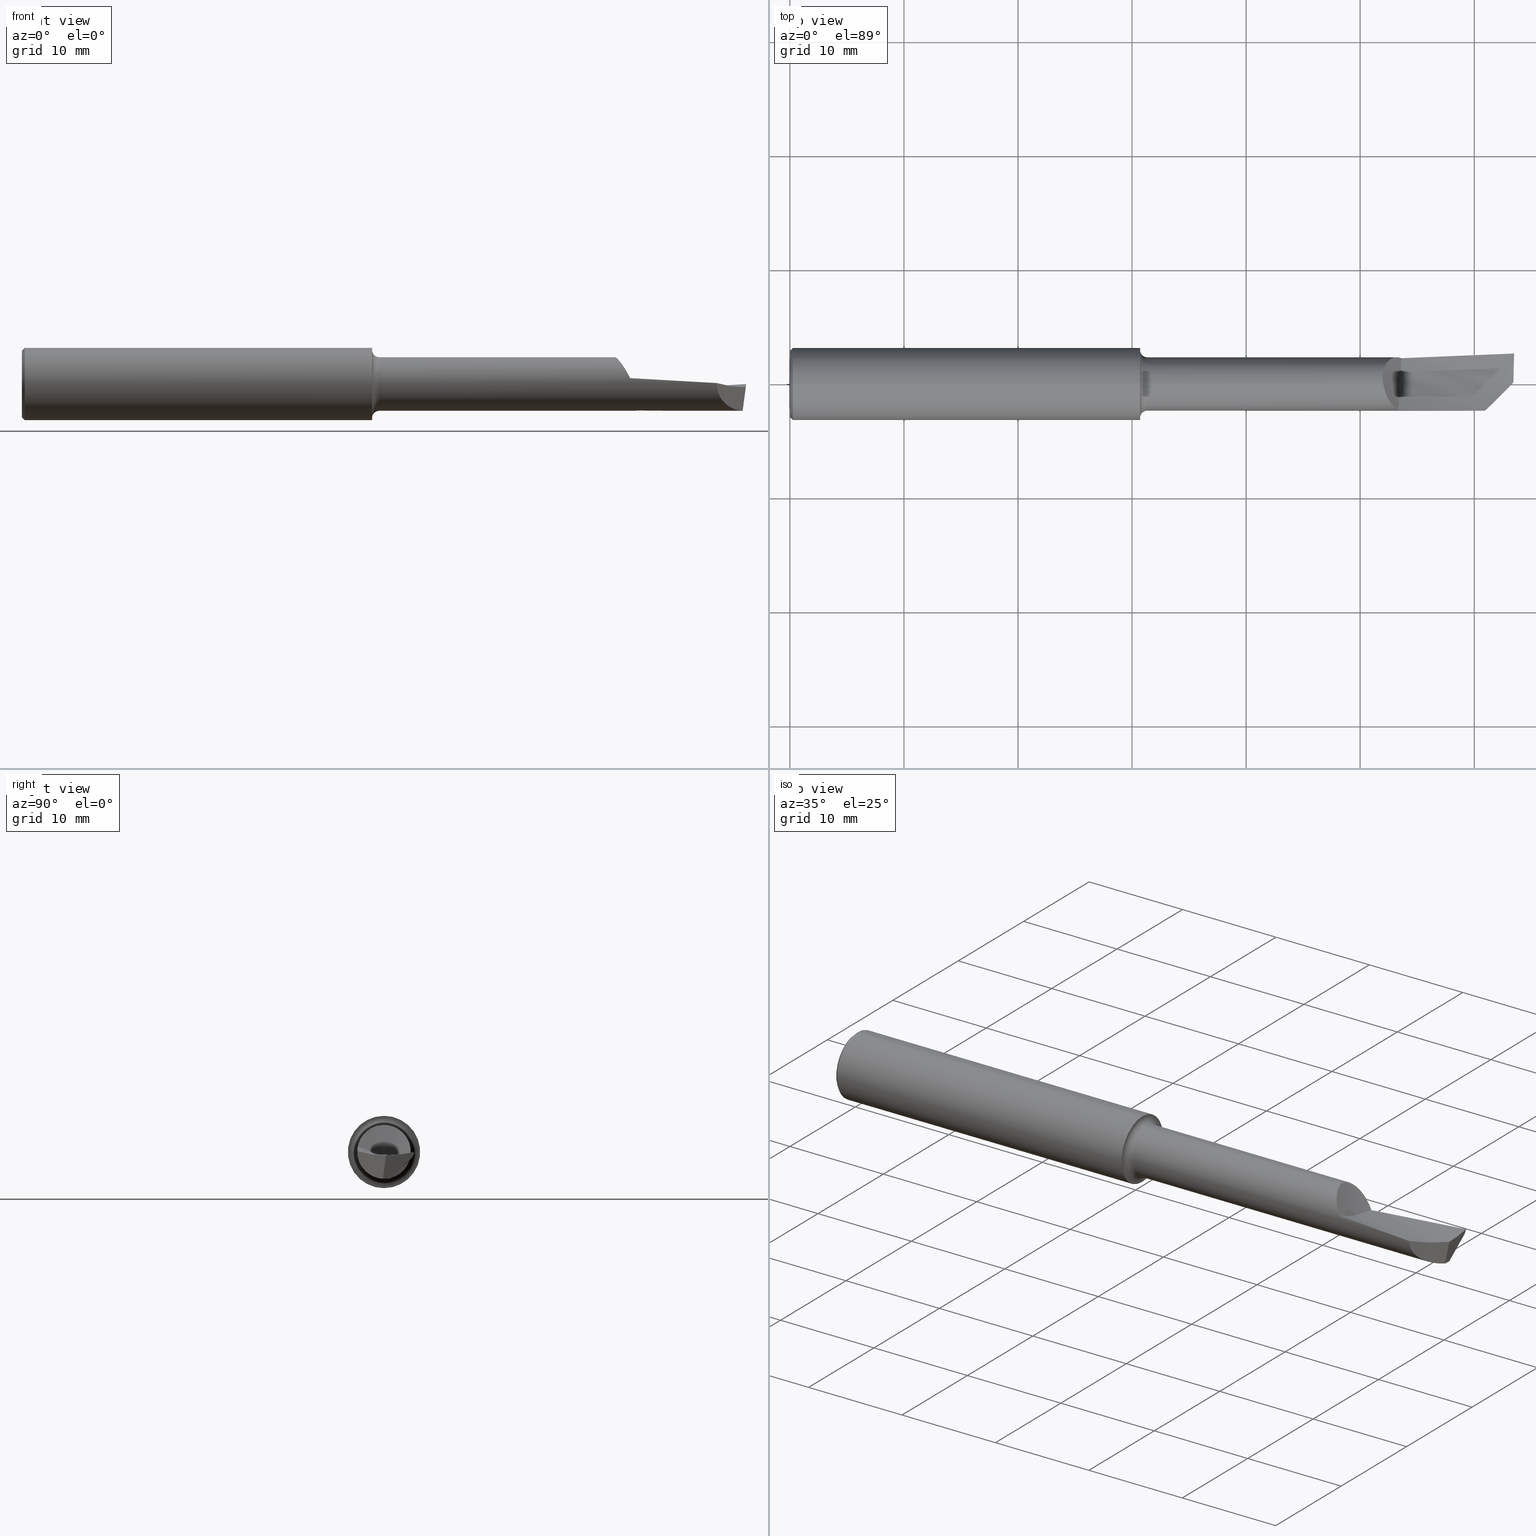
[diagram: canonical four-view strip — front | top / right | iso, engineering-drawing reading convention]
A machine part, canonical four-view strip (front | top / right | iso — engineering-drawing reading convention). The complete STEP part file that produces these views, byte-faithful:
ISO-10303-21;
HEADER;
FILE_DESCRIPTION (( 'STEP AP203' ),
    '1' );
FILE_NAME ('216369-HB2101250.STEP',
    '2024-08-05T19:19:06',
    ( '' ),
    ( '' ),
    'SwSTEP 2.0',
    'SolidWorks 2024',
    '' );
FILE_SCHEMA (( 'CONFIG_CONTROL_DESIGN' ));
ENDSEC;

DATA;
#1 = CARTESIAN_POINT ( 'NONE',  ( 1.812666666666668203, 0.1692320603815770930, -0.05466611626099807802 ) ) ;
#2 = B_SPLINE_SURFACE_WITH_KNOTS ( 'NONE', 1, 3, ( 
 ( #141, #19, #266, #437 ),
 ( #683, #521, #636, #641 ) ),
 .UNSPECIFIED., .F., .F., .F.,
 ( 2, 2 ),
 ( 4, 4 ),
 ( 0.000000000000000000, 1.000000000000000000 ),
 ( 0.000000000000000000, 1.000000000000000000 ),
 .UNSPECIFIED. ) ;
#3 = EDGE_LOOP ( 'NONE', ( #522, #548, #490, #761, #415, #293, #364, #35, #603 ) ) ;
#4 = EDGE_CURVE ( 'NONE', #611, #585, #375, .T. ) ;
#5 = PERSON_AND_ORGANIZATION ( #441, #413 ) ;
#6 = CARTESIAN_POINT ( 'NONE',  ( 2.041777777777778358, -0.06463100845323596633, -0.004147875681276347488 ) ) ;
#7 = ORIENTED_EDGE ( 'NONE', *, *, #23, .T. ) ;
#8 =( CONVERSION_BASED_UNIT ( 'INCH', #75 ) LENGTH_UNIT ( ) NAMED_UNIT ( #73 ) );
#9 = DIRECTION ( 'NONE',  ( 0.000000000000000000, 0.000000000000000000, -1.000000000000000000 ) ) ;
#10 = CARTESIAN_POINT ( 'NONE',  ( 2.041777777777778802, -0.1620295639055862602, 0.06880203030876089199 ) ) ;
#11 = EDGE_LOOP ( 'NONE', ( #303, #204, #371, #395 ) ) ;
#12 = CARTESIAN_POINT ( 'NONE',  ( 2.064632393218945428, -0.05062565620870612682, 0.07748382293347116923 ) ) ;
#13 = ORIENTED_EDGE ( 'NONE', *, *, #173, .T. ) ;
#14 = B_SPLINE_CURVE_WITH_KNOTS ( 'NONE', 3,
 ( #292, #397, #644, #288 ),
 .UNSPECIFIED., .F., .F.,
 ( 4, 4 ),
 ( 0.005011679458168879359, 1.000000000000000000 ),
 .UNSPECIFIED. ) ;
#15 = DIRECTION ( 'NONE',  ( -1.000000000000000000, -0.000000000000000000, -0.000000000000000000 ) ) ;
#16 = ORIENTED_EDGE ( 'NONE', *, *, #178, .T. ) ;
#17 = CARTESIAN_POINT ( 'NONE',  ( 2.046359999999999957, 0.03186954430192588672, 0.08683652541406519654 ) ) ;
#18 = ORIENTED_EDGE ( 'NONE', *, *, #535, .T. ) ;
#19 = CARTESIAN_POINT ( 'NONE',  ( 2.373333011663514291, 0.1057582611602083666, 0.04041104946920352770 ) ) ;
#20 = VECTOR ( 'NONE', #296, 39.37007874015748143 ) ;
#21 = CARTESIAN_POINT ( 'NONE',  ( 2.373332864543214349, 0.09467142348069552960, -0.02411840428777742296 ) ) ;
#22 = CARTESIAN_POINT ( 'NONE',  ( 2.498105852030231944, 0.03982996995073795343, -0.01077648217461518385 ) ) ;
#23 = EDGE_CURVE ( 'NONE', #197, #534, #558, .T. ) ;
#24 = CIRCLE ( 'NONE', #600, 0.09250000000000004052 ) ;
#25 = FACE_OUTER_BOUND ( 'NONE', #140, .T. ) ;
#26 = AXIS2_PLACEMENT_3D ( 'NONE', #359, #126, #132 ) ;
#27 = LINE ( 'NONE', #150, #133 ) ;
#28 = CARTESIAN_POINT ( 'NONE',  ( 1.208895135488212036, 0.000000000000000000, 0.000000000000000000 ) ) ;
#29 = B_SPLINE_CURVE_WITH_KNOTS ( 'NONE', 3,
 ( #326, #324, #431, #143 ),
 .UNSPECIFIED., .F., .F.,
 ( 4, 4 ),
 ( 0.000000000000000000, 0.005932586083088494527 ),
 .UNSPECIFIED. ) ;
#30 = ORIENTED_EDGE ( 'NONE', *, *, #568, .T. ) ;
#31 = PRODUCT_RELATED_PRODUCT_CATEGORY ( 'detail', '', ( #655 ) ) ;
#32 = CARTESIAN_POINT ( 'NONE',  ( 2.487695489768970258, -0.003208829926469456556, -0.09249999999999992950 ) ) ;
#33 = CARTESIAN_POINT ( 'NONE',  ( 2.109728201757894439, 0.05835192853738405128, -0.02303726912454236858 ) ) ;
#34 = EDGE_CURVE ( 'NONE', #134, #100, #29, .T. ) ;
#35 = ORIENTED_EDGE ( 'NONE', *, *, #587, .T. ) ;
#36 = LOCAL_TIME ( 12, 19, 6.000000000000000000, #236 ) ;
#37 = DIRECTION ( 'NONE',  ( 0.1218739150664907706, 0.000000000000000000, 0.9925455903012041503 ) ) ;
#38 = CARTESIAN_POINT ( 'NONE',  ( 2.498095554844090849, 0.1000035969173681955, -0.01513699696102066387 ) ) ;
#39 = DIRECTION ( 'NONE',  ( 0.000000000000000000, 0.000000000000000000, 1.000000000000000000 ) ) ;
#40 = CARTESIAN_POINT ( 'NONE',  ( 2.046360000000000845, -0.05362023393611917155, 0.1168180843722871343 ) ) ;
#41 =( BOUNDED_SURFACE ( )  B_SPLINE_SURFACE ( 3, 2, ( 
 ( #238, #353, #10, #77, #722 ),
 ( #533, #601, #6, #487, #247 ),
 ( #470, #184, #243, #478, #414 ),
 ( #476, #653, #116, #1, #177 ) ),
 .UNSPECIFIED., .F., .F., .F. ) 
 B_SPLINE_SURFACE_WITH_KNOTS ( ( 4, 4 ),
 ( 3, 2, 3 ),
 ( 0.000000000000000000, 1.000000000000000000 ),
 ( 0.000000000000000000, 0.5000000000000000000, 1.000000000000000000 ),
 .UNSPECIFIED. ) 
 GEOMETRIC_REPRESENTATION_ITEM ( )  RATIONAL_B_SPLINE_SURFACE ( (
 ( 1.000000000000000000, 0.9898214418809326842, 1.000000000000000000, 0.9898214418809326842, 1.000000000000000000),
 ( 0.9579078231528690424, 0.9481577027021983461, 0.9579078231528690424, 0.9481577027021983461, 0.9579078231528690424),
 ( 0.9579078231528690424, 0.9481577027021983461, 0.9579078231528690424, 0.9481577027021983461, 0.9579078231528690424),
 ( 1.000000000000000000, 0.9898214418809326842, 1.000000000000000000, 0.9898214418809326842, 1.000000000000000000) ) ) 
 REPRESENTATION_ITEM ( '' )  SURFACE ( )  );
#42 = CIRCLE ( 'NONE', #365, 0.09250000000000006828 ) ;
#43 = DESIGN_CONTEXT ( 'detailed design', #638, 'design' ) ;
#44 = CARTESIAN_POINT ( 'NONE',  ( 2.120000000000000107, 0.09249999999999999889, 0.000000000000000000 ) ) ;
#45 = DIRECTION ( 'NONE',  ( -0.7071067811865487940, -0.7071067811865462405, 0.000000000000000000 ) ) ;
#46 = EDGE_LOOP ( 'NONE', ( #645, #559, #406, #65 ) ) ;
#47 = CARTESIAN_POINT ( 'NONE',  ( 2.120000000000000107, 0.08855785515986705492, -0.02671621772414664239 ) ) ;
#48 = CARTESIAN_POINT ( 'NONE',  ( 2.120000000000000107, 0.1031491054400725804, 0.02301130782419849238 ) ) ;
#49 = AXIS2_PLACEMENT_3D ( 'NONE', #228, #461, #702 ) ;
#50 = VERTEX_POINT ( 'NONE', #500 ) ;
#51 = EDGE_CURVE ( 'NONE', #260, #556, #27, .T. ) ;
#52 = CARTESIAN_POINT ( 'NONE',  ( 0.009999999999999993269, 1.528971528735470422E-17, 0.1248500000000000026 ) ) ;
#53 = CARTESIAN_POINT ( 'NONE',  ( 2.384597864376268195, -0.1066061731855178218, -0.09999999999999999167 ) ) ;
#54 = CIRCLE ( 'NONE', #148, 0.09250000000000006828 ) ;
#55 = DIRECTION ( 'NONE',  ( -1.000000000000000000, -0.000000000000000000, -0.000000000000000000 ) ) ;
#56 = CARTESIAN_POINT ( 'NONE',  ( 2.120000000000000107, 0.08990917335082526662, -0.02421779605015241671 ) ) ;
#57 = CARTESIAN_POINT ( 'NONE',  ( 2.111665809954995865, 0.08915496014083672260, -0.02465041748704987698 ) ) ;
#58 = VERTEX_POINT ( 'NONE', #274 ) ;
#59 = EDGE_CURVE ( 'NONE', #637, #530, #694, .T. ) ;
#60 = CARTESIAN_POINT ( 'NONE',  ( 2.063224009766620348, -0.04778499748353295246, 0.07925519998079094686 ) ) ;
#61 = ORIENTED_EDGE ( 'NONE', *, *, #528, .T. ) ;
#62 = PERSON_AND_ORGANIZATION ( #441, #413 ) ;
#63 = CARTESIAN_POINT ( 'NONE',  ( 2.111665809954995865, 0.08915496014083672260, -0.02465041748704987698 ) ) ;
#64 = CARTESIAN_POINT ( 'NONE',  ( 2.066924862295452137, -0.05487806547671817553, 0.07446320367560980980 ) ) ;
#65 = ORIENTED_EDGE ( 'NONE', *, *, #661, .F. ) ;
#66 = EDGE_CURVE ( 'NONE', #530, #411, #748, .T. ) ;
#67 = AXIS2_PLACEMENT_3D ( 'NONE', #28, #208, #90 ) ;
#68 = CARTESIAN_POINT ( 'NONE',  ( 2.053768289044423323, 0.06146564332930373048, 0.06913270069952653918 ) ) ;
#69 = CARTESIAN_POINT ( 'NONE',  ( 2.059668613704617623, -0.04013664932119070938, 0.08354322363455572720 ) ) ;
#70 = ORIENTED_EDGE ( 'NONE', *, *, #674, .F. ) ;
#71 = PERSON_AND_ORGANIZATION ( #441, #413 ) ;
#72 = CARTESIAN_POINT ( 'NONE',  ( 2.049868107001878936, 0.05118305480786089490, 0.07711223675425975255 ) ) ;
#73 = DIMENSIONAL_EXPONENTS ( 1.000000000000000000, 0.000000000000000000, 0.000000000000000000, 0.000000000000000000, 0.000000000000000000, 0.000000000000000000, 0.000000000000000000 ) ;
#74 = ORIENTED_EDGE ( 'NONE', *, *, #323, .T. ) ;
#75 = LENGTH_MEASURE_WITH_UNIT ( LENGTH_MEASURE( 0.02539999999999999897 ), #599 );
#76 = EDGE_CURVE ( 'NONE', #197, #321, #498, .T. ) ;
#77 = CARTESIAN_POINT ( 'NONE',  ( 1.812666666666668203, -0.1521373253644021650, 0.09209836458385559088 ) ) ;
#78 = EDGE_LOOP ( 'NONE', ( #258, #117 ) ) ;
#79 = DIRECTION ( 'NONE',  ( 1.000000000000000000, 0.000000000000000000, 0.000000000000000000 ) ) ;
#80 = CARTESIAN_POINT ( 'NONE',  ( 1.233895135488211947, 0.000000000000000000, 0.1174999999999999933 ) ) ;
#81 = EDGE_LOOP ( 'NONE', ( #673, #477, #484, #525 ) ) ;
#82 = APPROVAL_PERSON_ORGANIZATION ( #416, #652, #366 ) ;
#83 = CARTESIAN_POINT ( 'NONE',  ( 2.046359999999998625, 0.02548420369320192683, 0.08827803738801957845 ) ) ;
#84 = FACE_OUTER_BOUND ( 'NONE', #11, .T. ) ;
#85 = APPROVAL ( #369, 'UNSPECIFIED' ) ;
#86 = AXIS2_PLACEMENT_3D ( 'NONE', #325, #682, #198 ) ;
#87 = DIRECTION ( 'NONE',  ( 1.000000000000000000, 0.000000000000000000, 0.000000000000000000 ) ) ;
#88 = DIRECTION ( 'NONE',  ( 0.000000000000000000, 0.000000000000000000, -1.000000000000000000 ) ) ;
#89 = ORIENTED_EDGE ( 'NONE', *, *, #568, .F. ) ;
#90 = DIRECTION ( 'NONE',  ( 0.000000000000000000, 0.000000000000000000, -1.000000000000000000 ) ) ;
#91 = CARTESIAN_POINT ( 'NONE',  ( 1.233895135488211947, 0.000000000000000000, 0.000000000000000000 ) ) ;
#92 = AXIS2_PLACEMENT_3D ( 'NONE', #53, #577, #45 ) ;
#93 = DIRECTION ( 'NONE',  ( 0.000000000000000000, 0.000000000000000000, -1.000000000000000000 ) ) ;
#94 = DIRECTION ( 'NONE',  ( 0.000000000000000000, 0.000000000000000000, 1.000000000000000000 ) ) ;
#95 = DIRECTION ( 'NONE',  ( 0.000000000000000000, -0.2699282944604969869, -0.9628804265585875211 ) ) ;
#96 = DIRECTION ( 'NONE',  ( 0.000000000000000000, 0.000000000000000000, -1.000000000000000000 ) ) ;
#97 = CARTESIAN_POINT ( 'NONE',  ( 2.246667561320148998, -0.06387639169839057218, -0.1364924236186684792 ) ) ;
#98 = B_SPLINE_CURVE_WITH_KNOTS ( 'NONE', 3,
 ( #746, #385, #620, #218, #572, #145, #275, #231, #628, #297 ),
 .UNSPECIFIED., .F., .F.,
 ( 4, 3, 3, 4 ),
 ( 5.421010862427521568E-20, 0.0001024457695730184151, 0.0002561145868976849051, 0.0004097835628805116133 ),
 .UNSPECIFIED. ) ;
#99 = AXIS2_PLACEMENT_3D ( 'NONE', #633, #338, #649 ) ;
#100 = VERTEX_POINT ( 'NONE', #630 ) ;
#101 = CARTESIAN_POINT ( 'NONE',  ( 2.099985204774065028, -0.09024474448373209778, 0.02030113526544562522 ) ) ;
#102 = CARTESIAN_POINT ( 'NONE',  ( 2.500000000000000000, 0.1000850858006551020, -0.01499999999999999944 ) ) ;
#103 = ADVANCED_FACE ( 'NONE', ( #676 ), #616, .F. ) ;
#104 = VERTEX_POINT ( 'NONE', #626 ) ;
#105 = ADVANCED_FACE ( 'NONE', ( #84 ), #426, .F. ) ;
#106 = CARTESIAN_POINT ( 'NONE',  ( 2.047909686212891156, -1.554536630577597272E-06, 0.09251412615423502961 ) ) ;
#107 = DIRECTION ( 'NONE',  ( -1.000000000000000000, -0.000000000000000000, -0.000000000000000000 ) ) ;
#108 = ORIENTED_EDGE ( 'NONE', *, *, #34, .T. ) ;
#109 = CARTESIAN_POINT ( 'NONE',  ( 2.099469566383024510, -0.09876474483481953448, 0.02439576420680039312 ) ) ;
#110 = CARTESIAN_POINT ( 'NONE',  ( 2.120000000000000107, 0.08928196195395607382, -0.02418638603949730542 ) ) ;
#111 = CARTESIAN_POINT ( 'NONE',  ( 1.233895135488211947, 0.000000000000000000, 0.000000000000000000 ) ) ;
#112 = ORIENTED_EDGE ( 'NONE', *, *, #59, .F. ) ;
#113 = COORDINATED_UNIVERSAL_TIME_OFFSET ( 8, 0, .BEHIND. ) ;
#114 = ADVANCED_FACE ( 'NONE', ( #445 ), #2, .T. ) ;
#115 = CARTESIAN_POINT ( 'NONE',  ( 2.089248984098267314, 0.09189570065554272804, 0.01061359712825305814 ) ) ;
#116 = CARTESIAN_POINT ( 'NONE',  ( 2.041777777777778802, 0.1735051289674032771, -0.02971984481868702316 ) ) ;
#117 = ORIENTED_EDGE ( 'NONE', *, *, #604, .T. ) ;
#118 =( NAMED_UNIT ( * ) SI_UNIT ( $, .STERADIAN. ) SOLID_ANGLE_UNIT ( ) );
#119 = PRODUCT_DEFINITION_SHAPE ( 'NONE', 'NONE',  #489 ) ;
#120 = CARTESIAN_POINT ( 'NONE',  ( 2.063118217034377810, 0.07621158154041013377, 0.05250172275426842616 ) ) ;
#121 = VECTOR ( 'NONE', #565, 39.37007874015748143 ) ;
#122 = FACE_OUTER_BOUND ( 'NONE', #3, .T. ) ;
#123 = ORIENTED_EDGE ( 'NONE', *, *, #217, .T. ) ;
#124 = AXIS2_PLACEMENT_3D ( 'NONE', #563, #438, #37 ) ;
#125 = CARTESIAN_POINT ( 'NONE',  ( 2.070390417637881342, 0.08316591038031118099, 0.04049630990281854331 ) ) ;
#126 = DIRECTION ( 'NONE',  ( -1.000000000000000000, -0.000000000000000000, -0.000000000000000000 ) ) ;
#127 = VERTEX_POINT ( 'NONE', #343 ) ;
#128 = AXIS2_PLACEMENT_3D ( 'NONE', #44, #287, #759 ) ;
#129 = APPROVAL_STATUS ( 'not_yet_approved' ) ;
#130 = CARTESIAN_POINT ( 'NONE',  ( 0.000000000000000000, 0.000000000000000000, 0.000000000000000000 ) ) ;
#131 = ORIENTED_EDGE ( 'NONE', *, *, #614, .T. ) ;
#132 = DIRECTION ( 'NONE',  ( 0.000000000000000000, 0.000000000000000000, 1.000000000000000000 ) ) ;
#133 = VECTOR ( 'NONE', #209, 39.37007874015748143 ) ;
#134 = VERTEX_POINT ( 'NONE', #159 ) ;
#135 = DIRECTION ( 'NONE',  ( 0.000000000000000000, -1.000000000000000000, 0.000000000000000000 ) ) ;
#136 = ORIENTED_EDGE ( 'NONE', *, *, #692, .T. ) ;
#137 = B_SPLINE_CURVE_WITH_KNOTS ( 'NONE', 3,
 ( #194, #670, #588, #56 ),
 .UNSPECIFIED., .F., .F.,
 ( 4, 4 ),
 ( 2.686746494871500227E-21, 0.009679675726453004087 ),
 .UNSPECIFIED. ) ;
#138 = ADVANCED_FACE ( 'NONE', ( #589 ), #537, .T. ) ;
#139 = CARTESIAN_POINT ( 'NONE',  ( 0.009999999999999993269, 0.000000000000000000, 0.1248500000000000026 ) ) ;
#140 = EDGE_LOOP ( 'NONE', ( #230, #398, #289, #424 ) ) ;
#141 = CARTESIAN_POINT ( 'NONE',  ( 2.500000000000000000, 0.1052499999999999686, 0.05000000000000000278 ) ) ;
#142 = CARTESIAN_POINT ( 'NONE',  ( 2.398761991375083724, -0.09244204618670318063, 0.003273850457099876637 ) ) ;
#143 = CARTESIAN_POINT ( 'NONE',  ( 2.487911875949742946, 0.02158657043490888258, -0.09249999999999992950 ) ) ;
#144 = CC_DESIGN_APPROVAL ( #652, ( #489 ) ) ;
#145 = CARTESIAN_POINT ( 'NONE',  ( 2.499047594033947384, 0.1026322863735309177, -0.007570382820376967380 ) ) ;
#146 = DIRECTION ( 'NONE',  ( 1.000000000000000000, -0.000000000000000000, -0.000000000000000000 ) ) ;
#147 = DIRECTION ( 'NONE',  ( 0.000000000000000000, -0.5687054199298356982, -0.8225412727288697878 ) ) ;
#148 = AXIS2_PLACEMENT_3D ( 'NONE', #264, #494, #430 ) ;
#149 = DIRECTION ( 'NONE',  ( 0.000000000000000000, -0.000000000000000000, 1.000000000000000000 ) ) ;
#150 = CARTESIAN_POINT ( 'NONE',  ( 0.000000000000000000, 1.528971528735470422E-17, -0.1248500000000000026 ) ) ;
#151 = B_SPLINE_CURVE_WITH_KNOTS ( 'NONE', 3,
 ( #222, #597, #607, #543, #257, #483, #367, #64, #362, #656, #189, #418, #12, #60, #69, #306, #666, #539, #302 ),
 .UNSPECIFIED., .F., .F.,
 ( 4, 2, 2, 1, 2, 2, 1, 1, 2, 2, 4 ),
 ( 0.000000000000000000, 0.2282707196234882996, 0.4565414392469766547, 0.4850752791999117242, 0.4993421991763793977, 0.5029089291704984532, 0.5064756591646176753, 0.5136091191528541211, 0.5706767990587585659, 0.6848121588705655682, 0.9130828784941777965 ),
 .UNSPECIFIED. ) ;
#152 = EDGE_CURVE ( 'NONE', #611, #663, #310, .T. ) ;
#153 = CARTESIAN_POINT ( 'NONE',  ( 2.255347661285690197, 2.667820306312757049E-18, -0.09249999999999990175 ) ) ;
#154 = CARTESIAN_POINT ( 'NONE',  ( 2.487723492803501912, 0.000000000000000000, -0.09249999999999992950 ) ) ;
#155 = CARTESIAN_POINT ( 'NONE',  ( 0.009999999999999993269, 0.000000000000000000, -0.1248500000000000026 ) ) ;
#156 = ADVANCED_BREP_SHAPE_REPRESENTATION ( '216369-HB2101250', ( #672, #482 ), #291 ) ;
#157 = VECTOR ( 'NONE', #95, 39.37007874015747433 ) ;
#158 = CARTESIAN_POINT ( 'NONE',  ( 2.120000000000000107, 0.08965269071704771997, -0.02513271350373088089 ) ) ;
#159 = CARTESIAN_POINT ( 'NONE',  ( 2.255347661285690197, 2.667820306312757049E-18, -0.09249999999999990175 ) ) ;
#160 = ORIENTED_EDGE ( 'NONE', *, *, #387, .T. ) ;
#161 = FACE_OUTER_BOUND ( 'NONE', #235, .T. ) ;
#162 = ADVANCED_FACE ( 'NONE', ( #463 ), #517, .F. ) ;
#163 = CONICAL_SURFACE ( 'NONE', #488, 0.1248500000000000026, 0.7853981633974501664 ) ;
#164 = LINE ( 'NONE', #299, #20 ) ;
#165 = AXIS2_PLACEMENT_3D ( 'NONE', #382, #328, #276 ) ;
#166 = ORIENTED_EDGE ( 'NONE', *, *, #262, .F. ) ;
#167 = DIRECTION ( 'NONE',  ( 1.000000000000000000, 0.000000000000000000, 0.000000000000000000 ) ) ;
#168 = CARTESIAN_POINT ( 'NONE',  ( 0.009999999999999993269, 0.000000000000000000, 0.000000000000000000 ) ) ;
#169 = ORIENTED_EDGE ( 'NONE', *, *, #692, .F. ) ;
#170 = CARTESIAN_POINT ( 'NONE',  ( 2.398761991375083724, -0.09244204618670318063, 0.003273850457099876637 ) ) ;
#171 = CARTESIAN_POINT ( 'NONE',  ( 2.500000000000000000, -0.02976491419934342714, -0.1448500000000000065 ) ) ;
#172 = VERTEX_POINT ( 'NONE', #57 ) ;
#173 = EDGE_CURVE ( 'NONE', #127, #534, #703, .T. ) ;
#174 = DATE_TIME_ROLE ( 'creation_date' ) ;
#175 = UNCERTAINTY_MEASURE_WITH_UNIT (LENGTH_MEASURE( 1.000000000000000082E-05 ), #8, 'distance_accuracy_value', 'NONE');
#176 = CARTESIAN_POINT ( 'NONE',  ( 2.085945122272987007, 0.09115187329204563205, 0.01580990246086047199 ) ) ;
#177 = CARTESIAN_POINT ( 'NONE',  ( 1.583555555555557826, 0.1581039042606014744, -0.07739802588953197116 ) ) ;
#178 = EDGE_CURVE ( 'NONE', #709, #411, #14, .T. ) ;
#179 = CARTESIAN_POINT ( 'NONE',  ( 2.069632865742709438, 0.08256084544845219975, 0.04172559821949102521 ) ) ;
#180 = CARTESIAN_POINT ( 'NONE',  ( 2.249186691865721954, -0.09213690762715877336, 0.01188989238826932381 ) ) ;
#181 = ORIENTED_EDGE ( 'NONE', *, *, #604, .F. ) ;
#182 = DIRECTION ( 'NONE',  ( 0.000000000000000000, 0.000000000000000000, 1.000000000000000000 ) ) ;
#183 = CARTESIAN_POINT ( 'NONE',  ( 2.052082497096776148, 0.05752794145831880562, 0.07245187427481471210 ) ) ;
#184 = CARTESIAN_POINT ( 'NONE',  ( 2.270888888888889845, 0.05765417977062659016, -0.03093662185290534800 ) ) ;
#185 = ORIENTED_EDGE ( 'NONE', *, *, #743, .T. ) ;
#186 = CIRCLE ( 'NONE', #267, 0.09250000000000004052 ) ;
#187 = APPLICATION_PROTOCOL_DEFINITION ( 'international standard', 'config_control_design', 1994, #638 ) ;
#188 = FACE_OUTER_BOUND ( 'NONE', #732, .T. ) ;
#189 = CARTESIAN_POINT ( 'NONE',  ( 2.066459374109550051, -0.05402831517415591228, 0.07508147086510379153 ) ) ;
#190 = EDGE_CURVE ( 'NONE', #346, #58, #457, .T. ) ;
#191 = ORIENTED_EDGE ( 'NONE', *, *, #674, .T. ) ;
#192 = CIRCLE ( 'NONE', #560, 0.02499999999999992159 ) ;
#193 = PERSON_AND_ORGANIZATION ( #441, #413 ) ;
#194 = CARTESIAN_POINT ( 'NONE',  ( 2.500000000000000000, 0.1052499999999999686, 0.000000000000000000 ) ) ;
#195 = ORIENTED_EDGE ( 'NONE', *, *, #205, .F. ) ;
#196 = DIRECTION ( 'NONE',  ( -0.000000000000000000, 1.000000000000000000, 1.224646799147353207E-16 ) ) ;
#197 = VERTEX_POINT ( 'NONE', #698 ) ;
#198 = DIRECTION ( 'NONE',  ( 0.000000000000000000, 0.000000000000000000, 1.000000000000000000 ) ) ;
#199 = ORIENTED_EDGE ( 'NONE', *, *, #200, .F. ) ;
#200 = EDGE_CURVE ( 'NONE', #556, #458, #356, .T. ) ;
#201 = CARTESIAN_POINT ( 'NONE',  ( 2.120000000000000107, 0.08965269071704771997, -0.02513271350373088089 ) ) ;
#202 = ORIENTED_EDGE ( 'NONE', *, *, #347, .T. ) ;
#203 = APPLICATION_CONTEXT ( 'configuration controlled 3d designs of mechanical parts and assemblies' ) ;
#204 = ORIENTED_EDGE ( 'NONE', *, *, #743, .F. ) ;
#205 = EDGE_CURVE ( 'NONE', #411, #657, #164, .T. ) ;
#206 = CIRCLE ( 'NONE', #679, 0.02499999999999992159 ) ;
#207 = CARTESIAN_POINT ( 'NONE',  ( 2.103692732370842755, -0.03694737321389103546, -0.006241681281368494268 ) ) ;
#208 = DIRECTION ( 'NONE',  ( 1.000000000000000000, 0.000000000000000000, 0.000000000000000000 ) ) ;
#209 = DIRECTION ( 'NONE',  ( -1.000000000000000000, -0.000000000000000000, -0.000000000000000000 ) ) ;
#210 = CC_DESIGN_DATE_AND_TIME_ASSIGNMENT ( #314, #174, ( #489 ) ) ;
#211 = CARTESIAN_POINT ( 'NONE',  ( 2.112521805327297386, 0.1031277890515528567, -0.02518047411719523052 ) ) ;
#212 = DIRECTION ( 'NONE',  ( 0.000000000000000000, 0.000000000000000000, 1.000000000000000000 ) ) ;
#213 = VERTEX_POINT ( 'NONE', #524 ) ;
#214 = LINE ( 'NONE', #32, #226 ) ;
#215 = CARTESIAN_POINT ( 'NONE',  ( 2.246666795550186890, 0.09583926743677556592, -0.01805720466450634956 ) ) ;
#216 = CARTESIAN_POINT ( 'NONE',  ( 0.000000000000000000, 0.000000000000000000, 0.000000000000000000 ) ) ;
#217 = EDGE_CURVE ( 'NONE', #50, #321, #766, .T. ) ;
#218 = CARTESIAN_POINT ( 'NONE',  ( 2.498571536531908333, 0.1013190704819927762, -0.01135407962001194239 ) ) ;
#219 = CARTESIAN_POINT ( 'NONE',  ( 2.496372941650144117, 0.08691895957709024068, -0.02823607253322814661 ) ) ;
#220 = VERTEX_POINT ( 'NONE', #708 ) ;
#221 = DIRECTION ( 'NONE',  ( 0.000000000000000000, -0.2699282944604969869, -0.9628804265585875211 ) ) ;
#222 = CARTESIAN_POINT ( 'NONE',  ( 2.099985204774065028, -0.09024474448373209778, 0.02030113526544562522 ) ) ;
#223 = ORIENTED_EDGE ( 'NONE', *, *, #758, .T. ) ;
#224 = EDGE_CURVE ( 'NONE', #344, #556, #770, .T. ) ;
#225 = CARTESIAN_POINT ( 'NONE',  ( 0.000000000000000000, 0.000000000000000000, 0.000000000000000000 ) ) ;
#226 = VECTOR ( 'NONE', #502, 39.37007874015748854 ) ;
#227 = CARTESIAN_POINT ( 'NONE',  ( 2.047331736345879172, 0.003802142883497584662, 0.09243292659895559205 ) ) ;
#228 = CARTESIAN_POINT ( 'NONE',  ( 1.208895135488212036, 0.1748499999999998389, 0.000000000000000000 ) ) ;
#229 = CARTESIAN_POINT ( 'NONE',  ( 2.046834931757196330, 0.007569663407495963968, 0.09223360116256799912 ) ) ;
#230 = ORIENTED_EDGE ( 'NONE', *, *, #387, .F. ) ;
#231 = CARTESIAN_POINT ( 'NONE',  ( 2.499523748576100601, 0.1039425966424684378, -0.003785689214319770766 ) ) ;
#232 = DIRECTION ( 'NONE',  ( 0.7071067811865462405, 8.659560562354948882E-17, 0.7071067811865487940 ) ) ;
#233 = ADVANCED_FACE ( 'NONE', ( #401 ), #389, .T. ) ;
#234 = CARTESIAN_POINT ( 'NONE',  ( 2.483721937484332454, -0.007482100077453975734, -0.1245570445610690996 ) ) ;
#235 = EDGE_LOOP ( 'NONE', ( #223, #13, #495, #112 ) ) ;
#236 = COORDINATED_UNIVERSAL_TIME_OFFSET ( 8, 0, .BEHIND. ) ;
#237 = VECTOR ( 'NONE', #147, 39.37007874015748854 ) ;
#238 = CARTESIAN_POINT ( 'NONE',  ( 2.500000000000000000, -0.1748499999999999499, 0.02036606132864511934 ) ) ;
#239 = ORIENTED_EDGE ( 'NONE', *, *, #635, .T. ) ;
#240 = CC_DESIGN_SECURITY_CLASSIFICATION ( #612, ( #283 ) ) ;
#241 = CARTESIAN_POINT ( 'NONE',  ( 2.047769141780094948, 0.04320709663551737523, 0.08202685796229827742 ) ) ;
#242 = B_SPLINE_SURFACE_WITH_KNOTS ( 'NONE', 1, 3, ( 
 ( #40, #631, #754, #562 ),
 ( #109, #207, #686, #211 ) ),
 .UNSPECIFIED., .F., .F., .F.,
 ( 2, 2 ),
 ( 4, 4 ),
 ( 0.000000000000000000, 1.000000000000000000 ),
 ( 0.01153228999222987231, 0.01577103337950940334 ),
 .UNSPECIFIED. ) ;
#243 = CARTESIAN_POINT ( 'NONE',  ( 2.041777777777778358, 0.05212855329269719395, -0.03843157631375539868 ) ) ;
#244 = EDGE_LOOP ( 'NONE', ( #181, #735, #18, #265 ) ) ;
#245 = CIRCLE ( 'NONE', #701, 0.1148499999999999660 ) ;
#246 = CARTESIAN_POINT ( 'NONE',  ( 2.100801665661182316, 0.09234974699426130862, -0.007575713144318351952 ) ) ;
#247 = CARTESIAN_POINT ( 'NONE',  ( 1.583555555555557381, -0.06318159010964548294, 0.01422880169115912398 ) ) ;
#248 = ORIENTED_EDGE ( 'NONE', *, *, #512, .T. ) ;
#249 = MECHANICAL_CONTEXT ( 'NONE', #203, 'mechanical' ) ;
#250 = EDGE_CURVE ( 'NONE', #585, #58, #42, .T. ) ;
#251 = CARTESIAN_POINT ( 'NONE',  ( 2.110129382589835956, 0.08982576072408803014, -0.02222601275358717168 ) ) ;
#252 = CARTESIAN_POINT ( 'NONE',  ( 2.120000000000000107, 0.08965269071704771997, -0.02513271350373088089 ) ) ;
#253 = EDGE_LOOP ( 'NONE', ( #89, #420, #551, #195, #479 ) ) ;
#254 = AXIS2_PLACEMENT_3D ( 'NONE', #508, #87, #93 ) ;
#255 = PERSON_AND_ORGANIZATION_ROLE ( 'creator' ) ;
#256 = CARTESIAN_POINT ( 'NONE',  ( 2.066937143561800916, 0.08018521494668562344, 0.04613968370157674886 ) ) ;
#257 = CARTESIAN_POINT ( 'NONE',  ( 2.071197751350749350, -0.06224497473912794787, 0.06871714438118152468 ) ) ;
#258 = ORIENTED_EDGE ( 'NONE', *, *, #370, .T. ) ;
#259 = CC_DESIGN_PERSON_AND_ORGANIZATION_ASSIGNMENT ( #193, #669, ( #612 ) ) ;
#260 = VERTEX_POINT ( 'NONE', #285 ) ;
#261 = CARTESIAN_POINT ( 'NONE',  ( 2.433661045213732610, -0.05754299234805449609, -0.09038568734144179773 ) ) ;
#262 = EDGE_CURVE ( 'NONE', #428, #611, #151, .T. ) ;
#263 = EDGE_LOOP ( 'NONE', ( #7, #282, #70 ) ) ;
#264 = CARTESIAN_POINT ( 'NONE',  ( 1.233895135488211947, 0.000000000000000000, 0.000000000000000000 ) ) ;
#265 = ORIENTED_EDGE ( 'NONE', *, *, #224, .F. ) ;
#266 = CARTESIAN_POINT ( 'NONE',  ( 2.246666675535476720, 0.1049494577821058344, 0.03131641692888404577 ) ) ;
#267 = AXIS2_PLACEMENT_3D ( 'NONE', #412, #311, #9 ) ;
#268 = ADVANCED_FACE ( 'NONE', ( #320 ), #41, .T. ) ;
#269 = CARTESIAN_POINT ( 'NONE',  ( 2.046359999999998625, 0.01913645612721458569, 0.08986829457070731608 ) ) ;
#270 = EDGE_LOOP ( 'NONE', ( #727, #248, #354, #368, #714, #751, #74, #700, #540, #518 ) ) ;
#271 = CIRCLE ( 'NONE', #419, 0.1248500000000000026 ) ;
#272 = VECTOR ( 'NONE', #466, 39.37007874015748854 ) ;
#273 = FACE_OUTER_BOUND ( 'NONE', #544, .T. ) ;
#274 = CARTESIAN_POINT ( 'NONE',  ( 1.233895135488211947, 1.132798289211302752E-17, -0.09250000000000006828 ) ) ;
#275 = CARTESIAN_POINT ( 'NONE',  ( 2.499285671182128521, 0.1032874411698090911, -0.005678036994176365385 ) ) ;
#276 = DIRECTION ( 'NONE',  ( 0.000000000000000000, 0.000000000000000000, 1.000000000000000000 ) ) ;
#277 = EDGE_CURVE ( 'NONE', #745, #58, #206, .T. ) ;
#278 = CARTESIAN_POINT ( 'NONE',  ( 2.246666795550186890, 0.09583926743677556592, -0.01805720466450634956 ) ) ;
#279 = FACE_OUTER_BOUND ( 'NONE', #590, .T. ) ;
#280 = CARTESIAN_POINT ( 'NONE',  ( 2.487705824692297618, -0.002335800290255904670, -0.09247787990872857744 ) ) ;
#281 = EDGE_LOOP ( 'NONE', ( #650, #191, #750, #764, #61, #379, #705 ) ) ;
#282 = ORIENTED_EDGE ( 'NONE', *, *, #173, .F. ) ;
#283 = PRODUCT_DEFINITION_FORMATION_WITH_SPECIFIED_SOURCE ( 'ANY', '', #655, .NOT_KNOWN. ) ;
#284 = CARTESIAN_POINT ( 'NONE',  ( 2.494655810549626818, 0.07378523218321564325, -0.04128701124501964886 ) ) ;
#285 = CARTESIAN_POINT ( 'NONE',  ( 1.208895135488212036, 1.528971528735470422E-17, -0.1248500000000000026 ) ) ;
#286 = ADVANCED_FACE ( 'NONE', ( #122 ), #662, .T. ) ;
#287 = DIRECTION ( 'NONE',  ( -1.000000000000000000, 0.000000000000000000, -0.000000000000000000 ) ) ;
#288 = CARTESIAN_POINT ( 'NONE',  ( 2.120000000000000107, 0.08063057151273658740, -0.03818176342124572631 ) ) ;
#289 = ORIENTED_EDGE ( 'NONE', *, *, #497, .T. ) ;
#290 = CARTESIAN_POINT ( 'NONE',  ( 2.491261446074267472, 0.04764413820502107905, -0.06707294084815633439 ) ) ;
#291 =( GEOMETRIC_REPRESENTATION_CONTEXT ( 3 ) GLOBAL_UNCERTAINTY_ASSIGNED_CONTEXT ( ( #175 ) ) GLOBAL_UNIT_ASSIGNED_CONTEXT ( ( #8, #480, #118 ) ) REPRESENTATION_CONTEXT ( 'NONE', 'WORKASPACE' ) );
#292 = CARTESIAN_POINT ( 'NONE',  ( 2.498095554844090849, 0.1000035969173681955, -0.01513699696102066387 ) ) ;
#293 = ORIENTED_EDGE ( 'NONE', *, *, #433, .F. ) ;
#294 = CARTESIAN_POINT ( 'NONE',  ( 2.492944179828426865, 0.06060341276940348076, -0.05428973667530772457 ) ) ;
#295 = AXIS2_PLACEMENT_3D ( 'NONE', #634, #167, #221 ) ;
#296 = DIRECTION ( 'NONE',  ( 0.000000000000000000, -0.8717274065385063331, -0.4899911516442410631 ) ) ;
#297 = CARTESIAN_POINT ( 'NONE',  ( 2.500000000000000000, 0.1052499999999999686, 0.000000000000000000 ) ) ;
#298 = EDGE_CURVE ( 'NONE', #534, #530, #550, .T. ) ;
#299 = CARTESIAN_POINT ( 'NONE',  ( 2.120000000000000107, 0.08063057151273658740, -0.03818176342124572631 ) ) ;
#300 = AXIS2_PLACEMENT_3D ( 'NONE', #216, #680, #739 ) ;
#301 = CARTESIAN_POINT ( 'NONE',  ( 2.054472730122977264, 0.06293394240340202672, 0.06779179277510284651 ) ) ;
#302 = CARTESIAN_POINT ( 'NONE',  ( 2.047909686212891156, -1.554536630577597272E-06, 0.09251412615423502961 ) ) ;
#303 = ORIENTED_EDGE ( 'NONE', *, *, #277, .F. ) ;
#304 = SECURITY_CLASSIFICATION_LEVEL ( 'unclassified' ) ;
#305 = CARTESIAN_POINT ( 'NONE',  ( 2.068150813712692049, 0.08131382946355247832, 0.04414186749009411936 ) ) ;
#306 = CARTESIAN_POINT ( 'NONE',  ( 2.057565407188882034, -0.03494212542111583414, 0.08581955901723029023 ) ) ;
#307 = ORIENTED_EDGE ( 'NONE', *, *, #433, .T. ) ;
#308 = ADVANCED_FACE ( 'NONE', ( #726 ), #316, .T. ) ;
#309 = APPLICATION_PROTOCOL_DEFINITION ( 'international standard', 'config_control_design', 1994, #203 ) ;
#310 = B_SPLINE_CURVE_WITH_KNOTS ( 'NONE', 3,
 ( #760, #695, #391, #449, #454, #227, #229, #349, #394 ),
 .UNSPECIFIED., .F., .F.,
 ( 4, 2, 1, 1, 1, 4 ),
 ( 0.9130828784941777965, 0.9185151985882918924, 0.9239475186824059882, 0.9348121588706334029, 0.9565414392470888982, 1.000000000000000000 ),
 .UNSPECIFIED. ) ;
#311 = DIRECTION ( 'NONE',  ( -1.000000000000000000, -0.000000000000000000, -0.000000000000000000 ) ) ;
#312 = DIRECTION ( 'NONE',  ( 0.000000000000000000, -1.224646799147353454E-16, 1.000000000000000000 ) ) ;
#313 = ORIENTED_EDGE ( 'NONE', *, *, #224, .T. ) ;
#314 = DATE_AND_TIME ( #421, #509 ) ;
#315 = CARTESIAN_POINT ( 'NONE',  ( 2.052825325469446405, 0.05937367452498127501, 0.07096069019223724683 ) ) ;
#316 = CYLINDRICAL_SURFACE ( 'NONE', #340, 0.1248500000000000026 ) ;
#317 = CC_DESIGN_DATE_AND_TIME_ASSIGNMENT ( #469, #651, ( #612 ) ) ;
#318 = ORIENTED_EDGE ( 'NONE', *, *, #618, .F. ) ;
#319 = B_SPLINE_CURVE_WITH_KNOTS ( 'NONE', 3,
 ( #336, #516, #290, #294, #284, #219, #38 ),
 .UNSPECIFIED., .F., .F.,
 ( 4, 3, 4 ),
 ( 2.384506018887239966E-05, 0.001416835870140611226, 0.002833748123453157068 ),
 .UNSPECIFIED. ) ;
#320 = FACE_OUTER_BOUND ( 'NONE', #281, .T. ) ;
#321 = VERTEX_POINT ( 'NONE', #671 ) ;
#322 = CARTESIAN_POINT ( 'NONE',  ( 2.398761991375083724, -0.09244204618670318063, 0.003273850457099876637 ) ) ;
#323 = EDGE_CURVE ( 'NONE', #350, #428, #460, .T. ) ;
#324 = CARTESIAN_POINT ( 'NONE',  ( 2.332771920986181691, 0.008204936860967758372, -0.09249999999999990175 ) ) ;
#325 = CARTESIAN_POINT ( 'NONE',  ( 0.000000000000000000, 0.000000000000000000, 0.000000000000000000 ) ) ;
#326 = CARTESIAN_POINT ( 'NONE',  ( 2.255347661285690197, 2.667820306312757049E-18, -0.09249999999999990175 ) ) ;
#327 = AXIS2_PLACEMENT_3D ( 'NONE', #755, #55, #381 ) ;
#328 = DIRECTION ( 'NONE',  ( -1.000000000000000000, -0.000000000000000000, -0.000000000000000000 ) ) ;
#329 = CARTESIAN_POINT ( 'NONE',  ( 2.120000000000000107, 0.08965269071704771997, -0.02513271350373088089 ) ) ;
#330 = CIRCLE ( 'NONE', #699, 0.1174999999999999933 ) ;
#331 = ADVANCED_FACE ( 'NONE', ( #610 ), #713, .F. ) ;
#332 = CARTESIAN_POINT ( 'NONE',  ( 2.373332892029680341, 0.1012029364206453591, -0.009588959587286482664 ) ) ;
#333 = ORIENTED_EDGE ( 'NONE', *, *, #407, .T. ) ;
#334 = DIRECTION ( 'NONE',  ( -1.000000000000000000, -0.000000000000000000, -0.000000000000000000 ) ) ;
#335 = DIRECTION ( 'NONE',  ( -1.000000000000000000, -0.000000000000000000, -0.000000000000000000 ) ) ;
#336 = CARTESIAN_POINT ( 'NONE',  ( 2.487911875949742946, 0.02158657043490888258, -0.09249999999999992950 ) ) ;
#337 = EDGE_CURVE ( 'NONE', #220, #458, #744, .T. ) ;
#338 = DIRECTION ( 'NONE',  ( -1.000000000000000000, -0.000000000000000000, -0.000000000000000000 ) ) ;
#339 = CC_DESIGN_APPROVAL ( #85, ( #283 ) ) ;
#340 = AXIS2_PLACEMENT_3D ( 'NONE', #130, #547, #409 ) ;
#341 = CARTESIAN_POINT ( 'NONE',  ( 2.120000000000000107, 0.08063057151273658740, -0.03818176342124572631 ) ) ;
#342 = PLANE ( 'NONE',  #295 ) ;
#343 = CARTESIAN_POINT ( 'NONE',  ( 2.120000000000000107, 0.08990917335082526662, -0.02421779605015241671 ) ) ;
#344 = VERTEX_POINT ( 'NONE', #503 ) ;
#345 = CARTESIAN_POINT ( 'NONE',  ( 2.246666839410972116, 0.08800600117758944352, -0.03192822413215862937 ) ) ;
#346 = VERTEX_POINT ( 'NONE', #617 ) ;
#347 = EDGE_CURVE ( 'NONE', #220, #260, #393, .T. ) ;
#348 = CARTESIAN_POINT ( 'NONE',  ( 2.056689114071338143, 0.06734694849162373154, 0.06362724162322289101 ) ) ;
#349 = CARTESIAN_POINT ( 'NONE',  ( 2.046522920783742538, 0.01074722021862143523, 0.09189779192344096903 ) ) ;
#350 = VERTEX_POINT ( 'NONE', #322 ) ;
#351 = APPROVAL_DATE_TIME ( #545, #85 ) ;
#352 = CARTESIAN_POINT ( 'NONE',  ( 2.059019005238193589, 0.07106157771718835114, 0.05949828892136807545 ) ) ;
#353 = CARTESIAN_POINT ( 'NONE',  ( 2.270888888888888957, -0.1719218024467703554, 0.04550569603366619309 ) ) ;
#354 = ORIENTED_EDGE ( 'NONE', *, *, #752, .T. ) ;
#355 = APPROVAL_DATE_TIME ( #474, #652 ) ;
#356 = CIRCLE ( 'NONE', #737, 0.1248500000000000026 ) ;
#357 = CARTESIAN_POINT ( 'NONE',  ( 2.081277077143194987, 0.08959285356399177003, 0.02317037652879478868 ) ) ;
#358 = ADVANCED_FACE ( 'NONE', ( #25 ), #501, .F. ) ;
#359 = CARTESIAN_POINT ( 'NONE',  ( 0.000000000000000000, 0.000000000000000000, 0.000000000000000000 ) ) ;
#360 = ORIENTED_EDGE ( 'NONE', *, *, #298, .F. ) ;
#361 = CARTESIAN_POINT ( 'NONE',  ( 2.090178636555235503, 0.09204756222701838964, 0.009154675718668410511 ) ) ;
#362 = CARTESIAN_POINT ( 'NONE',  ( 2.066732102188529652, -0.05452740403586520124, 0.07471960758305622174 ) ) ;
#363 = CONICAL_SURFACE ( 'NONE', #729, 0.1248500000000000026, 0.7853981633974501664 ) ;
#364 = ORIENTED_EDGE ( 'NONE', *, *, #646, .T. ) ;
#365 = AXIS2_PLACEMENT_3D ( 'NONE', #111, #575, #39 ) ;
#366 = APPROVAL_ROLE ( '' ) ;
#367 = CARTESIAN_POINT ( 'NONE',  ( 2.067401435210661553, -0.05573592228519117647, 0.07382865587468545598 ) ) ;
#368 = ORIENTED_EDGE ( 'NONE', *, *, #462, .T. ) ;
#369 = APPROVAL_STATUS ( 'not_yet_approved' ) ;
#370 = EDGE_CURVE ( 'NONE', #344, #213, #245, .T. ) ;
#371 = ORIENTED_EDGE ( 'NONE', *, *, #451, .T. ) ;
#372 = LOCAL_TIME ( 12, 19, 6.000000000000000000, #113 ) ;
#373 = ADVANCED_FACE ( 'NONE', ( #273 ), #615, .T. ) ;
#374 = CARTESIAN_POINT ( 'NONE',  ( 2.120000000000000107, 0.08063057151273658740, -0.03818176342124572631 ) ) ;
#375 = LINE ( 'NONE', #511, #121 ) ;
#376 = FACE_OUTER_BOUND ( 'NONE', #244, .T. ) ;
#377 = CARTESIAN_POINT ( 'NONE',  ( 2.500000000000000000, 0.1052499999999999686, 0.000000000000000000 ) ) ;
#378 = CARTESIAN_POINT ( 'NONE',  ( 2.099985204774065028, -0.09024474448373209778, 0.02030113526544562522 ) ) ;
#379 = ORIENTED_EDGE ( 'NONE', *, *, #323, .F. ) ;
#380 = VECTOR ( 'NONE', #232, 39.37007874015748143 ) ;
#381 = DIRECTION ( 'NONE',  ( 0.000000000000000000, 0.000000000000000000, 1.000000000000000000 ) ) ;
#382 = CARTESIAN_POINT ( 'NONE',  ( 1.233895135488211947, 0.000000000000000000, 0.000000000000000000 ) ) ;
#383 = CARTESIAN_POINT ( 'NONE',  ( 2.498847675109613586, 0.07274798056255336876, -0.007074594563097086342 ) ) ;
#384 = CIRCLE ( 'NONE', #459, 0.1148499999999999660 ) ;
#385 = CARTESIAN_POINT ( 'NONE',  ( 2.498254200941743886, 0.1004425182897683844, -0.01387617236857617564 ) ) ;
#386 = CARTESIAN_POINT ( 'NONE',  ( 2.120000000000000107, 0.08965269071704771997, -0.02513271350373088089 ) ) ;
#387 = EDGE_CURVE ( 'NONE', #745, #753, #330, .T. ) ;
#388 = FACE_OUTER_BOUND ( 'NONE', #46, .T. ) ;
#389 = CYLINDRICAL_SURFACE ( 'NONE', #99, 0.09250000000000004052 ) ;
#390 = CARTESIAN_POINT ( 'NONE',  ( 0.009999999999999993269, 0.000000000000000000, 0.000000000000000000 ) ) ;
#391 = CARTESIAN_POINT ( 'NONE',  ( 2.047827916880122778, 0.0005448074884518045195, 0.09249879614009957896 ) ) ;
#392 = FACE_OUTER_BOUND ( 'NONE', #553, .T. ) ;
#393 = CIRCLE ( 'NONE', #67, 0.1248500000000000026 ) ;
#394 = CARTESIAN_POINT ( 'NONE',  ( 2.046359999999999957, 0.01283752039381813419, 0.09160484741616192750 ) ) ;
#395 = ORIENTED_EDGE ( 'NONE', *, *, #250, .T. ) ;
#396 = CARTESIAN_POINT ( 'NONE',  ( 2.115831856367703434, 0.08921906441239114971, -0.02441856689959861354 ) ) ;
#397 = CARTESIAN_POINT ( 'NONE',  ( 2.372063245490356298, 0.09460459572741664047, -0.02419664582615828688 ) ) ;
#398 = ORIENTED_EDGE ( 'NONE', *, *, #277, .T. ) ;
#399 = B_SPLINE_CURVE_WITH_KNOTS ( 'NONE', 3,
 ( #624, #689, #443, #153 ),
 .UNSPECIFIED., .F., .F.,
 ( 4, 4 ),
 ( 0.000000000000000000, 0.003456506819781745340 ),
 .UNSPECIFIED. ) ;
#400 = CARTESIAN_POINT ( 'NONE',  ( 2.497767342160548854, 0.006563304598762102239, -0.01116899279488216615 ) ) ;
#401 = FACE_OUTER_BOUND ( 'NONE', #270, .T. ) ;
#402 = APPROVAL_PERSON_ORGANIZATION ( #5, #85, #536 ) ;
#403 = CARTESIAN_POINT ( 'NONE',  ( 2.120000000000000107, 0.08990917335082526662, -0.02421779605015241324 ) ) ;
#404 = CARTESIAN_POINT ( 'NONE',  ( 2.050684075178326626, 0.05377232911390871645, 0.07533086458502062654 ) ) ;
#405 = CARTESIAN_POINT ( 'NONE',  ( 2.099985204774065028, -0.09024474448373209778, 0.02030113526544562522 ) ) ;
#406 = ORIENTED_EDGE ( 'NONE', *, *, #512, .F. ) ;
#407 = EDGE_CURVE ( 'NONE', #350, #50, #465, .T. ) ;
#408 = CARTESIAN_POINT ( 'NONE',  ( 2.090956218076420736, 0.09215935361655605562, 0.007935468564174230979 ) ) ;
#409 = DIRECTION ( 'NONE',  ( 0.000000000000000000, 0.000000000000000000, 1.000000000000000000 ) ) ;
#410 = B_SPLINE_SURFACE_WITH_KNOTS ( 'NONE', 1, 3, ( 
 ( #625, #332, #215, #201 ),
 ( #444, #21, #492, #374 ) ),
 .UNSPECIFIED., .F., .F., .F.,
 ( 2, 2 ),
 ( 4, 4 ),
 ( 0.000000000000000000, 1.000000000000000000 ),
 ( 0.000000000000000000, 1.000000000000000000 ),
 .UNSPECIFIED. ) ;
#411 = VERTEX_POINT ( 'NONE', #747 ) ;
#412 = CARTESIAN_POINT ( 'NONE',  ( 2.120000000000000107, 0.000000000000000000, 0.000000000000000000 ) ) ;
#413 = ORGANIZATION ( 'UNSPECIFIED', 'UNSPECIFIED', '' ) ;
#414 = CARTESIAN_POINT ( 'NONE',  ( 1.583555555555557381, 0.03918955435071098253, -0.05156113804157395203 ) ) ;
#415 = ORIENTED_EDGE ( 'NONE', *, *, #152, .T. ) ;
#416 = PERSON_AND_ORGANIZATION ( #441, #413 ) ;
#417 = CC_DESIGN_PERSON_AND_ORGANIZATION_ASSIGNMENT ( #71, #609, ( #489 ) ) ;
#418 = CARTESIAN_POINT ( 'NONE',  ( 2.066208213237177294, -0.05356572789672646440, 0.07541362391561989842 ) ) ;
#419 = AXIS2_PLACEMENT_3D ( 'NONE', #390, #583, #94 ) ;
#420 = ORIENTED_EDGE ( 'NONE', *, *, #34, .F. ) ;
#421 = CALENDAR_DATE ( 2024, 5, 8 ) ;
#422 = CARTESIAN_POINT ( 'NONE',  ( 2.107649412634555741, 0.09082427280002823566, -0.01835262024603391898 ) ) ;
#423 = DIRECTION ( 'NONE',  ( 0.000000000000000000, -0.5687054199298356982, -0.8225412727288697878 ) ) ;
#424 = ORIENTED_EDGE ( 'NONE', *, *, #451, .F. ) ;
#425 = COORDINATED_UNIVERSAL_TIME_OFFSET ( 8, 0, .BEHIND. ) ;
#426 = TOROIDAL_SURFACE ( 'NONE', #769, 0.1174999999999999933, 0.02499999999999992853 ) ;
#427 = CARTESIAN_POINT ( 'NONE',  ( 2.487701070223761857, -0.003502967338024744973, -0.09243364766051770376 ) ) ;
#428 = VERTEX_POINT ( 'NONE', #378 ) ;
#429 = APPROVAL_PERSON_ORGANIZATION ( #591, #582, #531 ) ;
#430 = DIRECTION ( 'NONE',  ( 0.000000000000000000, 0.000000000000000000, 1.000000000000000000 ) ) ;
#431 = CARTESIAN_POINT ( 'NONE',  ( 2.410321793698463111, 0.01514861186955584853, -0.09249999999999998501 ) ) ;
#432 = AXIS2_PLACEMENT_3D ( 'NONE', #738, #149, #499 ) ;
#433 = EDGE_CURVE ( 'NONE', #496, #663, #742, .T. ) ;
#434 = CARTESIAN_POINT ( 'NONE',  ( 2.120000000000000551, 0.08949102992630660058, -0.02419698754576702499 ) ) ;
#435 = CARTESIAN_POINT ( 'NONE',  ( 0.000000000000000000, 0.000000000000000000, 0.000000000000000000 ) ) ;
#436 = ORIENTED_EDGE ( 'NONE', *, *, #152, .F. ) ;
#437 = CARTESIAN_POINT ( 'NONE',  ( 2.120000000000000107, 0.1031491054400725804, 0.02301130782419849238 ) ) ;
#438 = DIRECTION ( 'NONE',  ( -0.9925083585251990304, 0.008661489226065292868, 0.1218693434051474900 ) ) ;
#439 = FACE_OUTER_BOUND ( 'NONE', #450, .T. ) ;
#440 = CARTESIAN_POINT ( 'NONE',  ( 2.373332892029680341, 0.1012029364206453591, -0.009588959587286482664 ) ) ;
#441 = PERSON ( 'UNSPECIFIED', 'UNSPECIFIED', 'UNSPECIFIED', ('UNSPECIFIED'), ('UNSPECIFIED'), ('UNSPECIFIED') ) ;
#442 = CC_DESIGN_PERSON_AND_ORGANIZATION_ASSIGNMENT ( #485, #728, ( #283 ) ) ;
#443 = CARTESIAN_POINT ( 'NONE',  ( 2.210237768285117532, -0.004780463194695070382, -0.09249999999999992950 ) ) ;
#444 = CARTESIAN_POINT ( 'NONE',  ( 2.500000000000000000, 0.1000850858006551020, -0.01500000000000000291 ) ) ;
#445 = FACE_OUTER_BOUND ( 'NONE', #263, .T. ) ;
#446 = ADVANCED_FACE ( 'NONE', ( #439 ), #163, .T. ) ;
#447 = CARTESIAN_POINT ( 'NONE',  ( 1.208895135488212036, 1.438959988998139914E-17, -0.1174999999999999933 ) ) ;
#448 = CARTESIAN_POINT ( 'NONE',  ( 1.233895135488211947, 0.000000000000000000, 0.09250000000000006828 ) ) ;
#449 = CARTESIAN_POINT ( 'NONE',  ( 2.047741136250034621, 0.001089221985226715992, 0.09249398736152565637 ) ) ;
#450 = EDGE_LOOP ( 'NONE', ( #318, #471, #313, #571 ) ) ;
#451 = EDGE_CURVE ( 'NONE', #753, #585, #192, .T. ) ;
#452 = B_SPLINE_CURVE_WITH_KNOTS ( 'NONE', 3,
 ( #712, #486, #241, #72, #404, #183, #315, #68, #654, #301, #532, #348, #352, #120, #660, #256, #305, #179, #125, #475, #542, #527, #773, #768, #357, #546, #176, #596, #538, #115, #361, #481, #716, #408, #730, #246, #422, #251, #63 ),
 .UNSPECIFIED., .F., .F.,
 ( 4, 2, 2, 1, 1, 2, 2, 2, 2, 1, 1, 1, 2, 2, 2, 2, 2, 1, 1, 2, 2, 2, 4 ),
 ( 0.000000000000000000, 0.1249999999999704681, 0.1874999999999563682, 0.2187499999999492628, 0.2343749999999457101, 0.2421874999999439337, 0.2499999999999421574, 0.3749999999999013012, 0.4374999999998820388, 0.4687499999998723799, 0.4843749999998676614, 0.4921874999998641087, 0.4960937499998634981, 0.4999999999998628319, 0.6249999999998702149, 0.6874999999998752109, 0.7187499999998789857, 0.7343749999998808731, 0.7421874999998818723, 0.7460937499998834266, 0.7499999999998850919, 0.8749999999999424904, 1.000000000000000000 ),
 .UNSPECIFIED. ) ;
#453 = CARTESIAN_POINT ( 'NONE',  ( 2.120000000000000107, 0.000000000000000000, 0.000000000000000000 ) ) ;
#454 = CARTESIAN_POINT ( 'NONE',  ( 2.047613336586801225, 0.001904979390059143409, 0.09248317671571612553 ) ) ;
#455 = ORIENTED_EDGE ( 'NONE', *, *, #462, .F. ) ;
#456 = DIRECTION ( 'NONE',  ( -1.000000000000000000, -0.000000000000000000, -0.000000000000000000 ) ) ;
#457 = LINE ( 'NONE', #514, #594 ) ;
#458 = VERTEX_POINT ( 'NONE', #139 ) ;
#459 = AXIS2_PLACEMENT_3D ( 'NONE', #225, #456, #640 ) ;
#460 =( BOUNDED_CURVE ( )  B_SPLINE_CURVE ( 2, ( #717, #180, #405 ),
 .UNSPECIFIED., .F., .T. ) 
 B_SPLINE_CURVE_WITH_KNOTS ( ( 3, 3 ),
 ( 0.1109587072986240042, 0.4360622139891772719 ),
 .UNSPECIFIED. ) 
 CURVE ( )  GEOMETRIC_REPRESENTATION_ITEM ( )  RATIONAL_B_SPLINE_CURVE ( ( 0.9734215292658963126, 0.9698259248218302764, 0.9746374891455962253 ) ) 
 REPRESENTATION_ITEM ( '' )  );
#461 = DIRECTION ( 'NONE',  ( 1.000000000000000000, 0.000000000000000000, 0.000000000000000000 ) ) ;
#462 = EDGE_CURVE ( 'NONE', #134, #104, #684, .T. ) ;
#463 = FACE_OUTER_BOUND ( 'NONE', #608, .T. ) ;
#464 = ORIENTED_EDGE ( 'NONE', *, *, #51, .F. ) ;
#465 =( BOUNDED_CURVE ( )  B_SPLINE_CURVE ( 3, ( #142, #505, #261, #427 ),
 .UNSPECIFIED., .F., .F. ) 
 B_SPLINE_CURVE_WITH_KNOTS ( ( 4, 4 ),
 ( 6.247784935851605326, 7.816102659225365734 ),
 .UNSPECIFIED. ) 
 CURVE ( )  GEOMETRIC_REPRESENTATION_ITEM ( )  RATIONAL_B_SPLINE_CURVE ( ( 1.000000000000000000, 0.8053217043961202748, 0.8053217043961202748, 1.000000000000000000 ) ) 
 REPRESENTATION_ITEM ( '' )  );
#466 = DIRECTION ( 'NONE',  ( 0.1220122463319277123, 0.1220122463319272405, 0.9850005195379716305 ) ) ;
#467 = ORIENTED_EDGE ( 'NONE', *, *, #337, .T. ) ;
#468 = CLOSED_SHELL ( 'NONE', ( #358, #506, #308, #286, #592, #268, #233, #373, #103, #446, #606, #105, #677, #138, #473, #114, #519, #331, #162, #736 ) ) ;
#469 = DATE_AND_TIME ( #772, #36 ) ;
#470 = CARTESIAN_POINT ( 'NONE',  ( 2.500000000000000444, 0.06084440686735265169, -0.02218851683438133673 ) ) ;
#471 = ORIENTED_EDGE ( 'NONE', *, *, #370, .F. ) ;
#472 = LOCAL_TIME ( 12, 19, 6.000000000000000000, #425 ) ;
#473 = ADVANCED_FACE ( 'NONE', ( #555 ), #410, .T. ) ;
#474 = DATE_AND_TIME ( #605, #724 ) ;
#475 = CARTESIAN_POINT ( 'NONE',  ( 2.070718623995845054, 0.08342116242586349040, 0.03996496425778542361 ) ) ;
#476 = CARTESIAN_POINT ( 'NONE',  ( 2.500000000000000000, 0.1748499999999998666, 0.02036606132864511934 ) ) ;
#477 = ORIENTED_EDGE ( 'NONE', *, *, #51, .T. ) ;
#478 = CARTESIAN_POINT ( 'NONE',  ( 1.812666666666668869, 0.04660292681476783244, -0.04592653077460544936 ) ) ;
#479 = ORIENTED_EDGE ( 'NONE', *, *, #178, .F. ) ;
#480 =( NAMED_UNIT ( * ) PLANE_ANGLE_UNIT ( ) SI_UNIT ( $, .RADIAN. ) );
#481 = CARTESIAN_POINT ( 'NONE',  ( 2.090581533027239480, 0.09210676330602084183, 0.008522862028076552340 ) ) ;
#482 = AXIS2_PLACEMENT_3D ( 'NONE', #719, #182, #541 ) ;
#483 = CARTESIAN_POINT ( 'NONE',  ( 2.067919854101655464, -0.05664095340334891759, 0.07313467737844994709 ) ) ;
#484 = ORIENTED_EDGE ( 'NONE', *, *, #535, .F. ) ;
#485 = PERSON_AND_ORGANIZATION ( #441, #413 ) ;
#486 = CARTESIAN_POINT ( 'NONE',  ( 2.046835084042315955, 0.03761252682148795434, 0.08472884904254979199 ) ) ;
#487 = CARTESIAN_POINT ( 'NONE',  ( 1.812666666666668869, -0.06522738294239313617, 0.005144660453304620955 ) ) ;
#488 = AXIS2_PLACEMENT_3D ( 'NONE', #675, #79, #733 ) ;
#489 = PRODUCT_DEFINITION ( 'UNKNOWN', '', #283, #43 ) ;
#490 = ORIENTED_EDGE ( 'NONE', *, *, #250, .F. ) ;
#491 = APPROVAL_DATE_TIME ( #561, #582 ) ;
#492 = CARTESIAN_POINT ( 'NONE',  ( 2.246666839410972116, 0.08800600117758944352, -0.03192822413215862937 ) ) ;
#493 = ORIENTED_EDGE ( 'NONE', *, *, #23, .F. ) ;
#494 = DIRECTION ( 'NONE',  ( -1.000000000000000000, -0.000000000000000000, -0.000000000000000000 ) ) ;
#495 = ORIENTED_EDGE ( 'NONE', *, *, #298, .T. ) ;
#496 = VERTEX_POINT ( 'NONE', #17 ) ;
#497 = EDGE_CURVE ( 'NONE', #58, #585, #54, .T. ) ;
#498 = B_SPLINE_CURVE_WITH_KNOTS ( 'NONE', 3,
 ( #688, #383, #22, #623 ),
 .UNSPECIFIED., .F., .F.,
 ( 4, 4 ),
 ( 8.292191760819323082E-18, 0.002523290404141616088 ),
 .UNSPECIFIED. ) ;
#499 = DIRECTION ( 'NONE',  ( 1.000000000000000000, 0.000000000000000000, -0.000000000000000000 ) ) ;
#500 = CARTESIAN_POINT ( 'NONE',  ( 2.487701070223761857, -0.003502967338024744973, -0.09243364766051770376 ) ) ;
#501 = TOROIDAL_SURFACE ( 'NONE', #165, 0.1174999999999999933, 0.02499999999999992853 ) ;
#502 = DIRECTION ( 'NONE',  ( -0.008726535498366733840, -0.9999619230641711987, 0.000000000000000000 ) ) ;
#503 = CARTESIAN_POINT ( 'NONE',  ( 0.000000000000000000, 0.000000000000000000, -0.1148499999999999660 ) ) ;
#504 = DIRECTION ( 'NONE',  ( -1.000000000000000000, -0.000000000000000000, -0.000000000000000000 ) ) ;
#505 = CARTESIAN_POINT ( 'NONE',  ( 2.396847981000522321, -0.09435605656126440366, -0.05077108463250118442 ) ) ;
#506 = ADVANCED_FACE ( 'NONE', ( #376 ), #363, .T. ) ;
#507 = CARTESIAN_POINT ( 'NONE',  ( 2.120000000000000107, 0.000000000000000000, 0.000000000000000000 ) ) ;
#508 = CARTESIAN_POINT ( 'NONE',  ( 1.208895135488212036, 0.000000000000000000, 0.000000000000000000 ) ) ;
#509 = LOCAL_TIME ( 12, 19, 6.000000000000000000, #711 ) ;
#510 = DIRECTION ( 'NONE',  ( 1.000000000000000000, 0.000000000000000000, 0.000000000000000000 ) ) ;
#511 = CARTESIAN_POINT ( 'NONE',  ( 0.000000000000000000, 0.000000000000000000, 0.09250000000000004052 ) ) ;
#512 = EDGE_CURVE ( 'NONE', #346, #657, #24, .T. ) ;
#513 = CARTESIAN_POINT ( 'NONE',  ( 0.009999999999999993269, 0.000000000000000000, 0.000000000000000000 ) ) ;
#514 = CARTESIAN_POINT ( 'NONE',  ( 0.000000000000000000, 1.132798289211302290E-17, -0.09250000000000004052 ) ) ;
#515 =( BOUNDED_CURVE ( )  B_SPLINE_CURVE ( 3, ( #586, #434, #681, #403 ),
 .UNSPECIFIED., .F., .T. ) 
 B_SPLINE_CURVE_WITH_KNOTS ( ( 4, 4 ),
 ( 0.005175778614820833803, 0.005191721417056123847 ),
 .UNSPECIFIED. ) 
 CURVE ( )  GEOMETRIC_REPRESENTATION_ITEM ( )  RATIONAL_B_SPLINE_CURVE ( ( 0.9740275819911479172, 0.9740656182505580407, 0.9741037836849223419, 0.9741420782942408207 ) ) 
 REPRESENTATION_ITEM ( '' )  );
#516 = CARTESIAN_POINT ( 'NONE',  ( 2.489584006386754922, 0.03463821121258572194, -0.07980971427196098533 ) ) ;
#517 = PLANE ( 'NONE',  #92 ) ;
#518 = ORIENTED_EDGE ( 'NONE', *, *, #497, .F. ) ;
#519 = ADVANCED_FACE ( 'NONE', ( #388 ), #342, .T. ) ;
#520 = PLANE ( 'NONE',  #128 ) ;
#521 = CARTESIAN_POINT ( 'NONE',  ( 2.373332892029680341, 0.1012029364206453591, -0.009588959587286482664 ) ) ;
#522 = ORIENTED_EDGE ( 'NONE', *, *, #661, .T. ) ;
#523 = CARTESIAN_POINT ( 'NONE',  ( 2.464380513559167429, -0.02682352400261893421, -0.01169628508488581263 ) ) ;
#524 = CARTESIAN_POINT ( 'NONE',  ( 0.000000000000000000, 1.467739188778102589E-17, 0.1148499999999999660 ) ) ;
#525 = ORIENTED_EDGE ( 'NONE', *, *, #337, .F. ) ;
#526 = PLANE ( 'NONE',  #124 ) ;
#527 = CARTESIAN_POINT ( 'NONE',  ( 2.071086826718692819, 0.08370366893413648535, 0.03936956152814580223 ) ) ;
#528 = EDGE_CURVE ( 'NONE', #172, #428, #668, .T. ) ;
#529 = CARTESIAN_POINT ( 'NONE',  ( 2.373332864543214349, 0.09467142348069552960, -0.02411840428777741949 ) ) ;
#530 = VERTEX_POINT ( 'NONE', #47 ) ;
#531 = APPROVAL_ROLE ( '' ) ;
#532 = CARTESIAN_POINT ( 'NONE',  ( 2.054641703697402288, 0.06327518632099983498, 0.06747302676158650758 ) ) ;
#533 = CARTESIAN_POINT ( 'NONE',  ( 2.500000000000000444, -0.06084440686735272802, -0.02218851683438132980 ) ) ;
#534 = VERTEX_POINT ( 'NONE', #158 ) ;
#535 = EDGE_CURVE ( 'NONE', #458, #556, #271, .T. ) ;
#536 = APPROVAL_ROLE ( '' ) ;
#537 = B_SPLINE_SURFACE_WITH_KNOTS ( 'NONE', 1, 3, ( 
 ( #102, #529, #345, #341 ),
 ( #171, #763, #97, #580 ) ),
 .UNSPECIFIED., .F., .F., .F.,
 ( 2, 2 ),
 ( 4, 4 ),
 ( 0.000000000000000000, 1.000000000000000000 ),
 ( 0.000000000000000000, 1.000000000000000000 ),
 .UNSPECIFIED. ) ;
#538 = CARTESIAN_POINT ( 'NONE',  ( 2.088470035096937849, 0.09174301055325204124, 0.01183760101169164386 ) ) ;
#539 = CARTESIAN_POINT ( 'NONE',  ( 2.049452892340596133, -0.009316029406795791473, 0.09249996228234926010 ) ) ;
#540 = ORIENTED_EDGE ( 'NONE', *, *, #4, .T. ) ;
#541 = DIRECTION ( 'NONE',  ( 1.000000000000000000, 0.000000000000000000, 0.000000000000000000 ) ) ;
#542 = CARTESIAN_POINT ( 'NONE',  ( 2.070938215181162612, 0.08359041568984154624, 0.03960973508378792113 ) ) ;
#543 = CARTESIAN_POINT ( 'NONE',  ( 2.075301723327796832, -0.06855649903353110142, 0.06298298239382445207 ) ) ;
#544 = EDGE_LOOP ( 'NONE', ( #464, #578, #467, #199 ) ) ;
#545 = DATE_AND_TIME ( #767, #372 ) ;
#546 = CARTESIAN_POINT ( 'NONE',  ( 2.083067939091490128, 0.09028758523319810325, 0.02034379597425753708 ) ) ;
#547 = DIRECTION ( 'NONE',  ( -1.000000000000000000, -0.000000000000000000, -0.000000000000000000 ) ) ;
#548 = ORIENTED_EDGE ( 'NONE', *, *, #190, .T. ) ;
#549 = SHAPE_DEFINITION_REPRESENTATION ( #119, #156 ) ;
#550 = LINE ( 'NONE', #252, #639 ) ;
#551 = ORIENTED_EDGE ( 'NONE', *, *, #752, .F. ) ;
#552 = CARTESIAN_POINT ( 'NONE',  ( 2.120000000000000107, 0.000000000000000000, -0.09249999999999992950 ) ) ;
#553 = EDGE_LOOP ( 'NONE', ( #202, #598 ) ) ;
#554 = DIRECTION ( 'NONE',  ( 0.000000000000000000, 0.000000000000000000, 1.000000000000000000 ) ) ;
#555 = FACE_OUTER_BOUND ( 'NONE', #723, .T. ) ;
#556 = VERTEX_POINT ( 'NONE', #647 ) ;
#557 = DIRECTION ( 'NONE',  ( -1.000000000000000000, -0.000000000000000000, -0.000000000000000000 ) ) ;
#558 = B_SPLINE_CURVE_WITH_KNOTS ( 'NONE', 3,
 ( #377, #440, #278, #329 ),
 .UNSPECIFIED., .F., .F.,
 ( 4, 4 ),
 ( 0.000000000000000000, 1.000000000000000000 ),
 .UNSPECIFIED. ) ;
#559 = ORIENTED_EDGE ( 'NONE', *, *, #205, .T. ) ;
#560 = AXIS2_PLACEMENT_3D ( 'NONE', #80, #135, #88 ) ;
#561 = DATE_AND_TIME ( #613, #472 ) ;
#562 = CARTESIAN_POINT ( 'NONE',  ( 2.046360000000001289, 0.1059440200732876813, 0.07762243902522686367 ) ) ;
#563 = CARTESIAN_POINT ( 'NONE',  ( 2.500000000000000000, 0.1052499999999999686, 0.000000000000000000 ) ) ;
#564 = CARTESIAN_POINT ( 'NONE',  ( 2.046359999999999957, 0.03186954430192588672, 0.08683652541406519654 ) ) ;
#565 = DIRECTION ( 'NONE',  ( -1.000000000000000000, -0.000000000000000000, -0.000000000000000000 ) ) ;
#566 = CARTESIAN_POINT ( 'NONE',  ( 2.498095554844090849, 0.1000035969173681955, -0.01513699696102066387 ) ) ;
#567 = CARTESIAN_POINT ( 'NONE',  ( 2.487701070223761857, -0.003502967338024744973, -0.09243364766051770376 ) ) ;
#568 = EDGE_CURVE ( 'NONE', #100, #709, #319, .T. ) ;
#569 = AXIS2_PLACEMENT_3D ( 'NONE', #507, #504, #685 ) ;
#570 = ORIENTED_EDGE ( 'NONE', *, *, #217, .F. ) ;
#571 = ORIENTED_EDGE ( 'NONE', *, *, #200, .T. ) ;
#572 = CARTESIAN_POINT ( 'NONE',  ( 2.498809549093434779, 0.1019761625121145959, -0.009462397472816717198 ) ) ;
#573 =( BOUNDED_CURVE ( )  B_SPLINE_CURVE ( 3, ( #567, #280, #749, #154 ),
 .UNSPECIFIED., .F., .F. ) 
 B_SPLINE_CURVE_WITH_KNOTS ( ( 4, 4 ),
 ( 0.03307364821532068899, 0.07095262296443420602 ),
 .UNSPECIFIED. ) 
 CURVE ( )  GEOMETRIC_REPRESENTATION_ITEM ( )  RATIONAL_B_SPLINE_CURVE ( ( 1.000000000000000000, 0.9998804355134170985, 0.9998804355134170985, 1.000000000000000000 ) ) 
 REPRESENTATION_ITEM ( '' )  );
#574 = CARTESIAN_POINT ( 'NONE',  ( 2.107791904823273388, 0.02744776930478207838, -0.01842625771583333849 ) ) ;
#575 = DIRECTION ( 'NONE',  ( -1.000000000000000000, -0.000000000000000000, -0.000000000000000000 ) ) ;
#576 = CARTESIAN_POINT ( 'NONE',  ( 2.111665809954995865, 0.08915496014083672260, -0.02465041748704987698 ) ) ;
#577 = DIRECTION ( 'NONE',  ( -0.7071067811865462405, 0.7071067811865487940, 0.000000000000000000 ) ) ;
#578 = ORIENTED_EDGE ( 'NONE', *, *, #347, .F. ) ;
#579 = CARTESIAN_POINT ( 'NONE',  ( 2.111665809954995865, 0.08915496014083672260, -0.02465041748704987698 ) ) ;
#580 = CARTESIAN_POINT ( 'NONE',  ( 2.120000000000000107, -0.07944964091159011088, -0.1281615977741831502 ) ) ;
#581 = ORIENTED_EDGE ( 'NONE', *, *, #710, .T. ) ;
#582 = APPROVAL ( #715, 'UNSPECIFIED' ) ;
#583 = DIRECTION ( 'NONE',  ( -1.000000000000000000, -0.000000000000000000, -0.000000000000000000 ) ) ;
#584 = DIRECTION ( 'NONE',  ( 0.000000000000000000, 0.000000000000000000, 1.000000000000000000 ) ) ;
#585 = VERTEX_POINT ( 'NONE', #448 ) ;
#586 = CARTESIAN_POINT ( 'NONE',  ( 2.120000000000000107, 0.08928196195395607382, -0.02418638603949730542 ) ) ;
#587 = EDGE_CURVE ( 'NONE', #172, #637, #704, .T. ) ;
#588 = CARTESIAN_POINT ( 'NONE',  ( 2.246698480951583754, 0.09595842451396570383, -0.01731511377960634826 ) ) ;
#589 = FACE_OUTER_BOUND ( 'NONE', #253, .T. ) ;
#590 = EDGE_LOOP ( 'NONE', ( #136, #771, #570, #239, #718, #30 ) ) ;
#591 = PERSON_AND_ORGANIZATION ( #441, #413 ) ;
#592 = ADVANCED_FACE ( 'NONE', ( #161 ), #520, .T. ) ;
#593 = ORIENTED_EDGE ( 'NONE', *, *, #528, .F. ) ;
#594 = VECTOR ( 'NONE', #757, 39.37007874015748143 ) ;
#595 = COORDINATED_UNIVERSAL_TIME_OFFSET ( 8, 0, .BEHIND. ) ;
#596 = CARTESIAN_POINT ( 'NONE',  ( 2.086935998376662216, 0.09141023289801462892, 0.01424971767703487116 ) ) ;
#597 = CARTESIAN_POINT ( 'NONE',  ( 2.092374781392567051, -0.08702720584656492564, 0.03461678013649809732 ) ) ;
#598 = ORIENTED_EDGE ( 'NONE', *, *, #720, .T. ) ;
#599 =( LENGTH_UNIT ( ) NAMED_UNIT ( * ) SI_UNIT ( $, .METRE. ) );
#600 = AXIS2_PLACEMENT_3D ( 'NONE', #453, #756, #707 ) ;
#601 = CARTESIAN_POINT ( 'NONE',  ( 2.270888888888889845, -0.06403463396407883812, -0.01344041181585731853 ) ) ;
#602 = VECTOR ( 'NONE', #691, 39.37007874015748143 ) ;
#603 = ORIENTED_EDGE ( 'NONE', *, *, #59, .T. ) ;
#604 = EDGE_CURVE ( 'NONE', #213, #344, #384, .T. ) ;
#605 = CALENDAR_DATE ( 2024, 5, 8 ) ;
#606 = ADVANCED_FACE ( 'NONE', ( #697, #392 ), #762, .T. ) ;
#607 = CARTESIAN_POINT ( 'NONE',  ( 2.085890238348705683, -0.08094550312319560847, 0.04598559725705525514 ) ) ;
#608 = EDGE_LOOP ( 'NONE', ( #333, #123, #131 ) ) ;
#609 = PERSON_AND_ORGANIZATION_ROLE ( 'creator' ) ;
#610 = FACE_OUTER_BOUND ( 'NONE', #619, .T. ) ;
#611 = VERTEX_POINT ( 'NONE', #106 ) ;
#612 = SECURITY_CLASSIFICATION ( '', '', #304 ) ;
#613 = CALENDAR_DATE ( 2024, 5, 8 ) ;
#614 = EDGE_CURVE ( 'NONE', #321, #350, #734, .T. ) ;
#615 = CYLINDRICAL_SURFACE ( 'NONE', #86, 0.1248500000000000026 ) ;
#616 = PLANE ( 'NONE',  #300 ) ;
#617 = CARTESIAN_POINT ( 'NONE',  ( 2.120000000000000107, 1.132798289211302290E-17, -0.09250000000000004052 ) ) ;
#618 = EDGE_CURVE ( 'NONE', #213, #458, #690, .T. ) ;
#619 = EDGE_LOOP ( 'NONE', ( #108, #581, #455 ) ) ;
#620 = CARTESIAN_POINT ( 'NONE',  ( 2.498412861647788752, 0.1008810095617350966, -0.01261519980447330103 ) ) ;
#621 = CARTESIAN_POINT ( 'NONE',  ( 0.000000000000000000, 0.000000000000000000, 0.1248500000000000026 ) ) ;
#622 = CIRCLE ( 'NONE', #327, 0.1174999999999999933 ) ;
#623 = CARTESIAN_POINT ( 'NONE',  ( 2.497767342160548854, 0.006563304598762102239, -0.01116899279488216615 ) ) ;
#624 = CARTESIAN_POINT ( 'NONE',  ( 2.120000000000000107, -0.01408598121421843381, -0.09142119630169293076 ) ) ;
#625 = CARTESIAN_POINT ( 'NONE',  ( 2.500000000000000000, 0.1052499999999999686, 0.000000000000000000 ) ) ;
#626 = CARTESIAN_POINT ( 'NONE',  ( 2.487723492803501912, 0.000000000000000000, -0.09249999999999992950 ) ) ;
#627 = CC_DESIGN_PERSON_AND_ORGANIZATION_ASSIGNMENT ( #664, #658, ( #655 ) ) ;
#628 = CARTESIAN_POINT ( 'NONE',  ( 2.499761858239264445, 0.1045967832171058598, -0.001893009771539285770 ) ) ;
#629 = CARTESIAN_POINT ( 'NONE',  ( 1.208895135488212036, 0.000000000000000000, 0.000000000000000000 ) ) ;
#630 = CARTESIAN_POINT ( 'NONE',  ( 2.487911875949742946, 0.02158657043490888258, -0.09249999999999992950 ) ) ;
#631 = CARTESIAN_POINT ( 'NONE',  ( 2.046359999999998625, -0.004657400960956972757, 0.09279469704556622678 ) ) ;
#632 = CARTESIAN_POINT ( 'NONE',  ( 2.101985182368761862, -0.06232069977107383696, 0.007196703789060790273 ) ) ;
#633 = CARTESIAN_POINT ( 'NONE',  ( 0.000000000000000000, 0.000000000000000000, 0.000000000000000000 ) ) ;
#634 = CARTESIAN_POINT ( 'NONE',  ( 2.120000000000000107, 0.1412791703317926584, 0.01232214736356279650 ) ) ;
#635 = EDGE_CURVE ( 'NONE', #50, #104, #573, .T. ) ;
#636 = CARTESIAN_POINT ( 'NONE',  ( 2.246666795550186890, 0.09583926743677556592, -0.01805720466450634956 ) ) ;
#637 = VERTEX_POINT ( 'NONE', #110 ) ;
#638 = APPLICATION_CONTEXT ( 'configuration controlled 3d designs of mechanical parts and assemblies' ) ;
#639 = VECTOR ( 'NONE', #423, 39.37007874015748854 ) ;
#640 = DIRECTION ( 'NONE',  ( 0.000000000000000000, 0.000000000000000000, 1.000000000000000000 ) ) ;
#641 = CARTESIAN_POINT ( 'NONE',  ( 2.120000000000000107, 0.08965269071704771997, -0.02513271350373088089 ) ) ;
#642 = CC_DESIGN_PERSON_AND_ORGANIZATION_ASSIGNMENT ( #62, #255, ( #283 ) ) ;
#643 = CARTESIAN_POINT ( 'NONE',  ( 2.119999999999999662, 0.08928196195395607382, -0.02418638603949730542 ) ) ;
#644 = CARTESIAN_POINT ( 'NONE',  ( 2.246032025813865296, 0.08796903788824292358, -0.03195956486655460171 ) ) ;
#645 = ORIENTED_EDGE ( 'NONE', *, *, #66, .T. ) ;
#646 = EDGE_CURVE ( 'NONE', #496, #172, #452, .T. ) ;
#647 = CARTESIAN_POINT ( 'NONE',  ( 0.009999999999999993269, 1.528971528735470422E-17, -0.1248500000000000026 ) ) ;
#648 = CC_DESIGN_APPROVAL ( #582, ( #612 ) ) ;
#649 = DIRECTION ( 'NONE',  ( 0.000000000000000000, 0.000000000000000000, 1.000000000000000000 ) ) ;
#650 = ORIENTED_EDGE ( 'NONE', *, *, #76, .F. ) ;
#651 = DATE_TIME_ROLE ( 'classification_date' ) ;
#652 = APPROVAL ( #129, 'UNSPECIFIED' ) ;
#653 = CARTESIAN_POINT ( 'NONE',  ( 2.270888888888888957, 0.1777781975532294612, -0.004773573376375951811 ) ) ;
#654 = CARTESIAN_POINT ( 'NONE',  ( 2.054188772820884079, 0.06234848831482269621, 0.06833062475167067662 ) ) ;
#655 = PRODUCT ( '216369-HB2101250', '216369-HB2101250', '', ( #249 ) ) ;
#656 = CARTESIAN_POINT ( 'NONE',  ( 2.066627336287861105, -0.05433633409741091269, 0.07485885989433643806 ) ) ;
#657 = VERTEX_POINT ( 'NONE', #721 ) ;
#658 = PERSON_AND_ORGANIZATION_ROLE ( 'design_owner' ) ;
#659 = CIRCLE ( 'NONE', #254, 0.1248500000000000026 ) ;
#660 = CARTESIAN_POINT ( 'NONE',  ( 2.064585350140756503, 0.07785742368321790785, 0.05003626694631373162 ) ) ;
#661 = EDGE_CURVE ( 'NONE', #530, #346, #186, .T. ) ;
#662 = CYLINDRICAL_SURFACE ( 'NONE', #26, 0.09250000000000004052 ) ;
#663 = VERTEX_POINT ( 'NONE', #725 ) ;
#664 = PERSON_AND_ORGANIZATION ( #441, #413 ) ;
#665 = VECTOR ( 'NONE', #146, 39.37007874015748143 ) ;
#666 = CARTESIAN_POINT ( 'NONE',  ( 2.052056960218472614, -0.01946374552352240703, 0.09108352192149235527 ) ) ;
#667 = EDGE_LOOP ( 'NONE', ( #185, #160 ) ) ;
#668 = B_SPLINE_CURVE_WITH_KNOTS ( 'NONE', 3,
 ( #579, #33, #574, #693, #632, #101 ),
 .UNSPECIFIED., .F., .F.,
 ( 4, 2, 4 ),
 ( 0.000000000000000000, 0.5000000000000000000, 1.000000000000000000 ),
 .UNSPECIFIED. ) ;
#669 = PERSON_AND_ORGANIZATION_ROLE ( 'classification_officer' ) ;
#670 = CARTESIAN_POINT ( 'NONE',  ( 2.373370140592598876, 0.1012041265267809576, -0.009235010046400874556 ) ) ;
#671 = CARTESIAN_POINT ( 'NONE',  ( 2.497767342160548854, 0.006563304598762102239, -0.01116899279488216615 ) ) ;
#672 = MANIFOLD_SOLID_BREP ( 'Front Angle', #468 ) ;
#673 = ORIENTED_EDGE ( 'NONE', *, *, #720, .F. ) ;
#674 = EDGE_CURVE ( 'NONE', #197, #127, #137, .T. ) ;
#675 = CARTESIAN_POINT ( 'NONE',  ( 0.009999999999999993269, 0.000000000000000000, 0.000000000000000000 ) ) ;
#676 = FACE_OUTER_BOUND ( 'NONE', #78, .T. ) ;
#677 = ADVANCED_FACE ( 'NONE', ( #188 ), #242, .T. ) ;
#678 = CARTESIAN_POINT ( 'NONE',  ( 2.046359999999999957, 0.01283752039381813419, 0.09160484741616192750 ) ) ;
#679 = AXIS2_PLACEMENT_3D ( 'NONE', #731, #196, #312 ) ;
#680 = DIRECTION ( 'NONE',  ( 1.000000000000000000, 0.000000000000000000, 0.000000000000000000 ) ) ;
#681 = CARTESIAN_POINT ( 'NONE',  ( 2.120000000000000551, 0.08970010041975085002, -0.02420745754555480439 ) ) ;
#682 = DIRECTION ( 'NONE',  ( -1.000000000000000000, -0.000000000000000000, -0.000000000000000000 ) ) ;
#683 = CARTESIAN_POINT ( 'NONE',  ( 2.500000000000000000, 0.1052499999999999686, 0.000000000000000000 ) ) ;
#684 = LINE ( 'NONE', #552, #665 ) ;
#685 = DIRECTION ( 'NONE',  ( 0.000000000000000000, 0.000000000000000000, 1.000000000000000000 ) ) ;
#686 = CARTESIAN_POINT ( 'NONE',  ( 2.108259403541730137, 0.03322201083773366342, -0.02366986548610440846 ) ) ;
#687 = DIRECTION ( 'NONE',  ( 0.000000000000000000, 0.000000000000000000, 1.000000000000000000 ) ) ;
#688 = CARTESIAN_POINT ( 'NONE',  ( 2.500000000000000000, 0.1052499999999999686, 0.000000000000000000 ) ) ;
#689 = CARTESIAN_POINT ( 'NONE',  ( 2.165123023610928676, -0.009485967679078336628, -0.09212995648928998249 ) ) ;
#690 = LINE ( 'NONE', #52, #380 ) ;
#691 = DIRECTION ( 'NONE',  ( 0.7071067811865462405, 0.000000000000000000, -0.7071067811865487940 ) ) ;
#692 = EDGE_CURVE ( 'NONE', #709, #197, #98, .T. ) ;
#693 = CARTESIAN_POINT ( 'NONE',  ( 2.103920395128665799, -0.03289320846274089438, -0.003308102619573058487 ) ) ;
#694 = CIRCLE ( 'NONE', #569, 0.09249999999999999889 ) ;
#695 = CARTESIAN_POINT ( 'NONE',  ( 2.047880505145098784, 0.0002213167310061477241, 0.09250000089681752191 ) ) ;
#696 = ORIENTED_EDGE ( 'NONE', *, *, #66, .F. ) ;
#697 = FACE_BOUND ( 'NONE', #667, .T. ) ;
#698 = CARTESIAN_POINT ( 'NONE',  ( 2.500000000000000000, 0.1052499999999999686, 0.000000000000000000 ) ) ;
#699 = AXIS2_PLACEMENT_3D ( 'NONE', #629, #15, #687 ) ;
#700 = ORIENTED_EDGE ( 'NONE', *, *, #262, .T. ) ;
#701 = AXIS2_PLACEMENT_3D ( 'NONE', #435, #557, #212 ) ;
#702 = DIRECTION ( 'NONE',  ( 0.000000000000000000, 0.000000000000000000, -1.000000000000000000 ) ) ;
#703 = LINE ( 'NONE', #48, #157 ) ;
#704 =( BOUNDED_CURVE ( )  B_SPLINE_CURVE ( 2, ( #576, #396, #643 ),
 .UNSPECIFIED., .F., .T. ) 
 B_SPLINE_CURVE_WITH_KNOTS ( ( 3, 3 ),
 ( 0.5767193966733749066, 0.5858306181482756392 ),
 .UNSPECIFIED. ) 
 CURVE ( )  GEOMETRIC_REPRESENTATION_ITEM ( )  RATIONAL_B_SPLINE_CURVE ( ( 0.9742721459605732104, 0.9741465623362280946, 0.9740275819911483612 ) ) 
 REPRESENTATION_ITEM ( '' )  );
#705 = ORIENTED_EDGE ( 'NONE', *, *, #614, .F. ) ;
#706 = CARTESIAN_POINT ( 'NONE',  ( 1.208895135488212036, 0.000000000000000000, 0.1174999999999999933 ) ) ;
#707 = DIRECTION ( 'NONE',  ( 0.000000000000000000, 0.000000000000000000, -1.000000000000000000 ) ) ;
#708 = CARTESIAN_POINT ( 'NONE',  ( 1.208895135488212036, 0.000000000000000000, 0.1248500000000000026 ) ) ;
#709 = VERTEX_POINT ( 'NONE', #566 ) ;
#710 = EDGE_CURVE ( 'NONE', #100, #104, #214, .T. ) ;
#711 = COORDINATED_UNIVERSAL_TIME_OFFSET ( 8, 0, .BEHIND. ) ;
#712 = CARTESIAN_POINT ( 'NONE',  ( 2.046359999999999957, 0.03186954430192588672, 0.08683652541406519654 ) ) ;
#713 = PLANE ( 'NONE',  #432 ) ;
#714 = ORIENTED_EDGE ( 'NONE', *, *, #635, .F. ) ;
#715 = APPROVAL_STATUS ( 'not_yet_approved' ) ;
#716 = CARTESIAN_POINT ( 'NONE',  ( 2.090851124895342306, 0.09214489540535994450, 0.008100202133049076020 ) ) ;
#717 = CARTESIAN_POINT ( 'NONE',  ( 2.398761991375083724, -0.09244204618670318063, 0.003273850457099876637 ) ) ;
#718 = ORIENTED_EDGE ( 'NONE', *, *, #710, .F. ) ;
#719 = CARTESIAN_POINT ( 'NONE',  ( 0.000000000000000000, 0.000000000000000000, 0.000000000000000000 ) ) ;
#720 = EDGE_CURVE ( 'NONE', #260, #220, #659, .T. ) ;
#721 = CARTESIAN_POINT ( 'NONE',  ( 2.120000000000000107, -0.01408598121421843381, -0.09142119630169293076 ) ) ;
#722 = CARTESIAN_POINT ( 'NONE',  ( 1.583555555555557826, -0.1360824561704624680, 0.1116640679746904036 ) ) ;
#723 = EDGE_LOOP ( 'NONE', ( #169, #16, #696, #360, #493 ) ) ;
#724 = LOCAL_TIME ( 12, 19, 6.000000000000000000, #595 ) ;
#725 = CARTESIAN_POINT ( 'NONE',  ( 2.046359999999999957, 0.01283752039381813419, 0.09160484741616192750 ) ) ;
#726 = FACE_OUTER_BOUND ( 'NONE', #81, .T. ) ;
#727 = ORIENTED_EDGE ( 'NONE', *, *, #190, .F. ) ;
#728 = PERSON_AND_ORGANIZATION_ROLE ( 'design_supplier' ) ;
#729 = AXIS2_PLACEMENT_3D ( 'NONE', #513, #510, #96 ) ;
#730 = CARTESIAN_POINT ( 'NONE',  ( 2.096433888643089549, 0.09287403088557083519, -0.0006477885304132591573 ) ) ;
#731 = CARTESIAN_POINT ( 'NONE',  ( 1.233895135488211947, 1.438959988998139914E-17, -0.1174999999999999933 ) ) ;
#732 = EDGE_LOOP ( 'NONE', ( #166, #593, #741, #307, #436 ) ) ;
#733 = DIRECTION ( 'NONE',  ( 0.000000000000000000, 0.000000000000000000, -1.000000000000000000 ) ) ;
#734 = B_SPLINE_CURVE_WITH_KNOTS ( 'NONE', 3,
 ( #400, #523, #765, #170 ),
 .UNSPECIFIED., .F., .F.,
 ( 4, 4 ),
 ( 7.967431483338750613E-05, 0.003654915943233829484 ),
 .UNSPECIFIED. ) ;
#735 = ORIENTED_EDGE ( 'NONE', *, *, #618, .T. ) ;
#736 = ADVANCED_FACE ( 'NONE', ( #279 ), #526, .F. ) ;
#737 = AXIS2_PLACEMENT_3D ( 'NONE', #168, #107, #584 ) ;
#738 = CARTESIAN_POINT ( 'NONE',  ( 2.120000000000000107, 0.000000000000000000, -0.09249999999999992950 ) ) ;
#739 = DIRECTION ( 'NONE',  ( 0.000000000000000000, 0.000000000000000000, -1.000000000000000000 ) ) ;
#740 = VECTOR ( 'NONE', #334, 39.37007874015748143 ) ;
#741 = ORIENTED_EDGE ( 'NONE', *, *, #646, .F. ) ;
#742 = B_SPLINE_CURVE_WITH_KNOTS ( 'NONE', 3,
 ( #564, #83, #269, #678 ),
 .UNSPECIFIED., .F., .F.,
 ( 4, 4 ),
 ( 0.000000000000000000, 1.000000000000000000 ),
 .UNSPECIFIED. ) ;
#743 = EDGE_CURVE ( 'NONE', #753, #745, #622, .T. ) ;
#744 = LINE ( 'NONE', #621, #740 ) ;
#745 = VERTEX_POINT ( 'NONE', #447 ) ;
#746 = CARTESIAN_POINT ( 'NONE',  ( 2.498095554844090849, 0.1000035969173681955, -0.01513699696102066387 ) ) ;
#747 = CARTESIAN_POINT ( 'NONE',  ( 2.120000000000000107, 0.08063057151273658740, -0.03818176342124572631 ) ) ;
#748 = LINE ( 'NONE', #386, #237 ) ;
#749 = CARTESIAN_POINT ( 'NONE',  ( 2.487713299779299891, -0.001168004884056162958, -0.09250000000000005440 ) ) ;
#750 = ORIENTED_EDGE ( 'NONE', *, *, #758, .F. ) ;
#751 = ORIENTED_EDGE ( 'NONE', *, *, #407, .F. ) ;
#752 = EDGE_CURVE ( 'NONE', #657, #134, #399, .T. ) ;
#753 = VERTEX_POINT ( 'NONE', #706 ) ;
#754 = CARTESIAN_POINT ( 'NONE',  ( 2.046359999999997736, 0.05068553317297104510, 0.07904524283450665989 ) ) ;
#755 = CARTESIAN_POINT ( 'NONE',  ( 1.208895135488212036, 0.000000000000000000, 0.000000000000000000 ) ) ;
#756 = DIRECTION ( 'NONE',  ( -1.000000000000000000, -0.000000000000000000, -0.000000000000000000 ) ) ;
#757 = DIRECTION ( 'NONE',  ( -1.000000000000000000, -0.000000000000000000, -0.000000000000000000 ) ) ;
#758 = EDGE_CURVE ( 'NONE', #637, #127, #515, .T. ) ;
#759 = DIRECTION ( 'NONE',  ( -0.000000000000000000, 0.000000000000000000, 1.000000000000000000 ) ) ;
#760 = CARTESIAN_POINT ( 'NONE',  ( 2.047909686212891156, -1.554536630577597272E-06, 0.09251412615423502961 ) ) ;
#761 = ORIENTED_EDGE ( 'NONE', *, *, #4, .F. ) ;
#762 = PLANE ( 'NONE',  #49 ) ;
#763 = CARTESIAN_POINT ( 'NONE',  ( 2.373332550008329989, -0.04700880150114244982, -0.1421382153914364510 ) ) ;
#764 = ORIENTED_EDGE ( 'NONE', *, *, #587, .F. ) ;
#765 = CARTESIAN_POINT ( 'NONE',  ( 2.431375663624378181, -0.05982837393740834953, -0.006924542088340215895 ) ) ;
#766 = LINE ( 'NONE', #234, #272 ) ;
#767 = CALENDAR_DATE ( 2024, 5, 8 ) ;
#768 = CARTESIAN_POINT ( 'NONE',  ( 2.076286271816420115, 0.08730198741611197577, 0.03105794626334805117 ) ) ;
#769 = AXIS2_PLACEMENT_3D ( 'NONE', #91, #335, #554 ) ;
#770 = LINE ( 'NONE', #155, #602 ) ;
#771 = ORIENTED_EDGE ( 'NONE', *, *, #76, .T. ) ;
#772 = CALENDAR_DATE ( 2024, 5, 8 ) ;
#773 = CARTESIAN_POINT ( 'NONE',  ( 2.073468108956049605, 0.08550618690932534904, 0.03552333859736412497 ) ) ;
ENDSEC;
END-ISO-10303-21;
